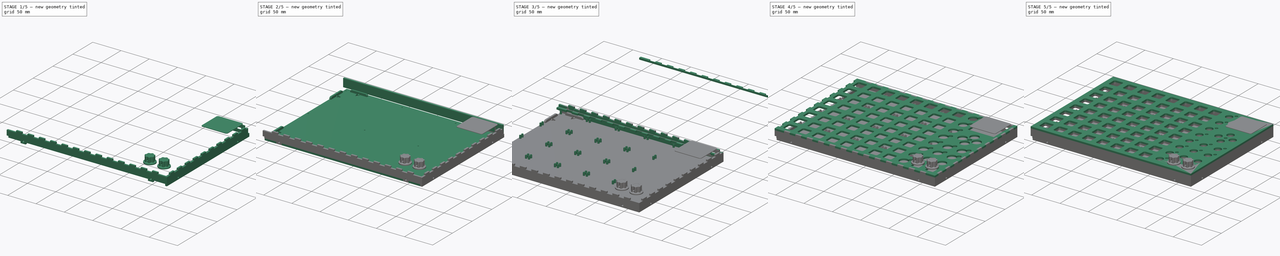
[diagram: build sequence overview — one tinted view per stage of 5, left to right]
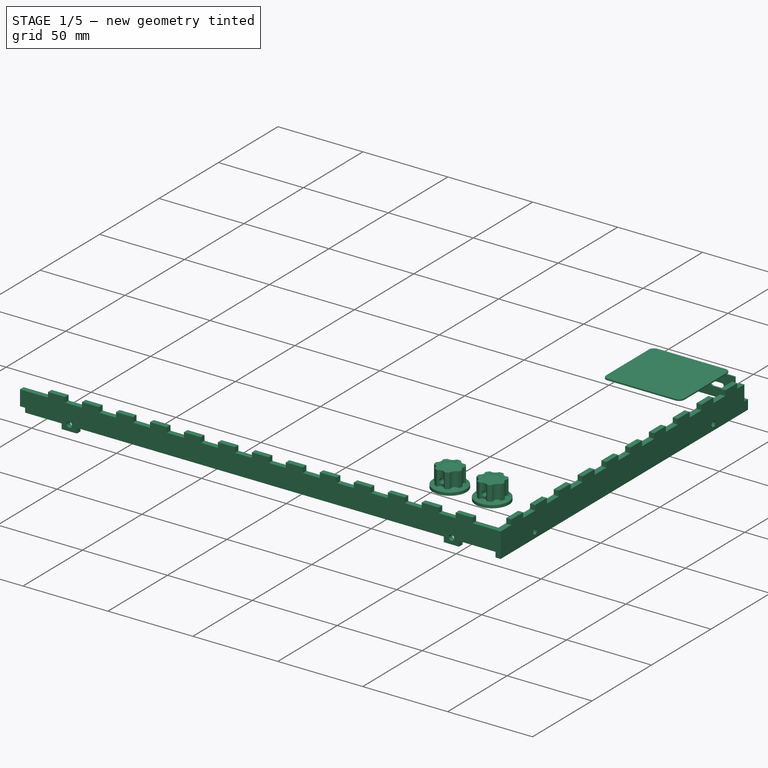
[diagram: stage 1 of 5 — iso view after this stage's code; geometry added in this stage tinted green]
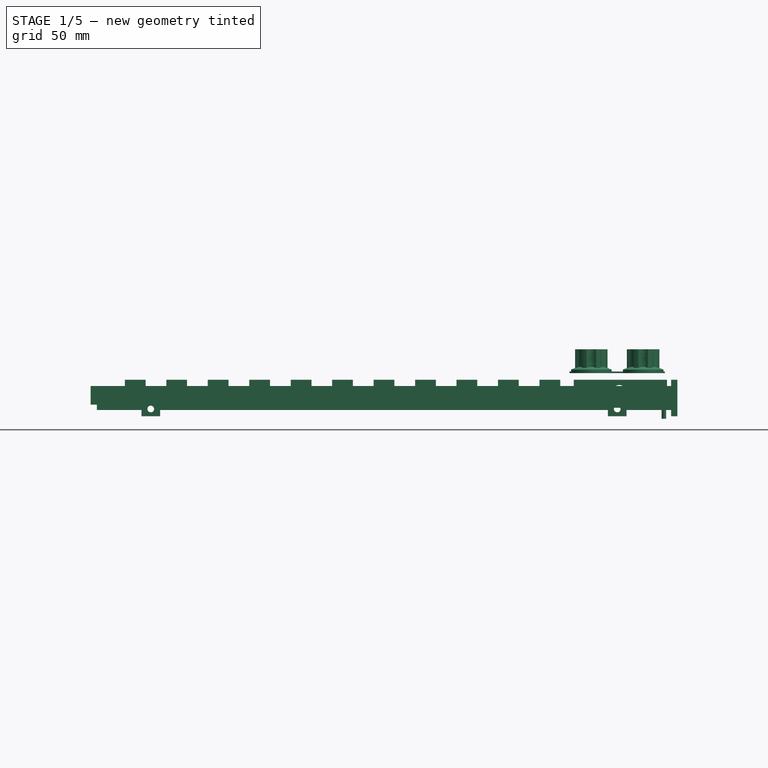
[diagram: stage 1 of 5 — front view after this stage's code; geometry added in this stage tinted green]
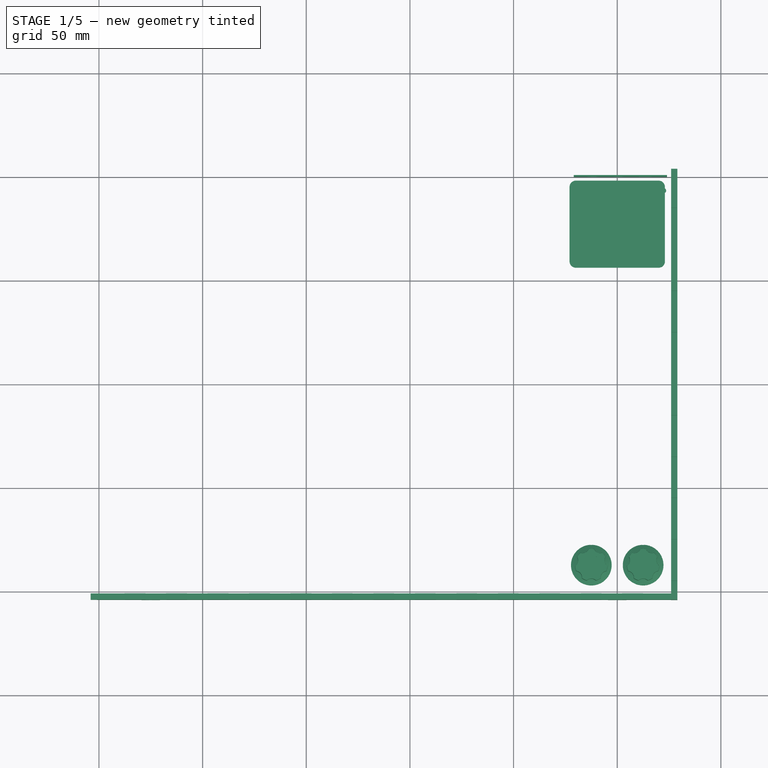
[diagram: stage 1 of 5 — top view after this stage's code; geometry added in this stage tinted green]
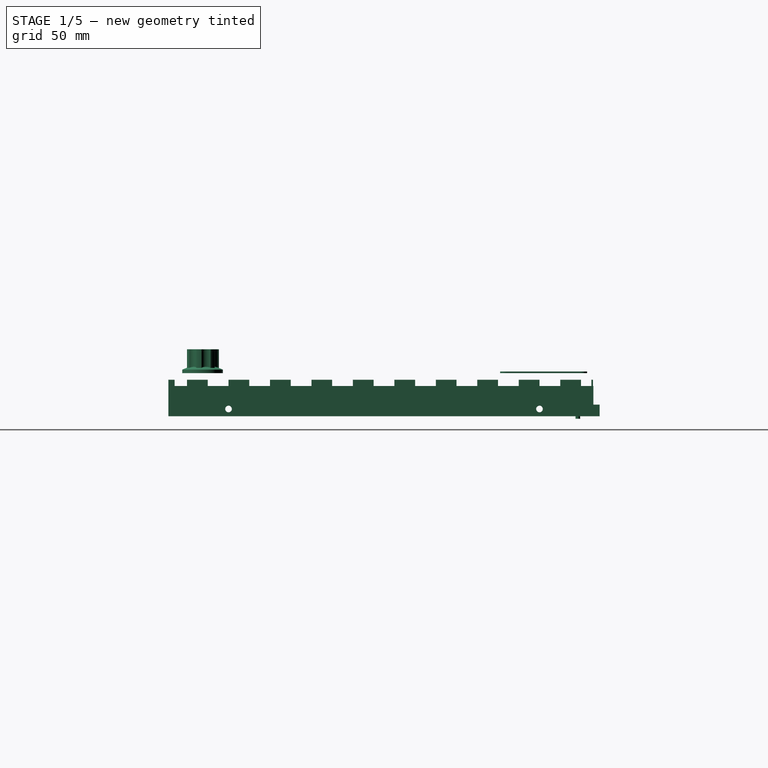
[diagram: stage 1 of 5 — right view after this stage's code; geometry added in this stage tinted green]
FCSTD DOCUMENT  (FreeCAD 0.16R6712 (Git))
Label: midi-grid
License: All rights reserved
LicenseURL: http://en.wikipedia.org/wiki/All_rights_reserved
objects: Part::FeaturePython×60, Part::Box×52, Part::Cut×51, App::VRMLObject×36, Part::Cylinder×25, Part::MultiFuse×20, Part::Feature×6, Sketcher::SketchObject×3, PartDesign::Pad×3, Part::Fillet×3, App::DocumentObjectGroup×1, Part::Mirroring×1
note: 227 computed .brp shape members not serialized (recipe doc carries the construction recipe); baked Part::Feature solids carry a one-line shape summary decoded from their .brp

FEATURE [Part::Box] Box025  label="Cube025"
  Height = 14.6
  Length = 283
  Placement = pos=(-4,0,-2.6) rot=(0,0,1;0rad)
  Width = 3
FEATURE [Part::Box] Box026  label="Cube026"
  Height = 3
  Length = 16.5
  Placement = pos=(-4,0,9) rot=(0,0,1;0rad)
  Width = 3
FEATURE [Part::FeaturePython] Clone015  label="Clone of Cube026"  # Draft clone (typed FeaturePython)
  Objects = -> [Box026]
  Placement = pos=(262.5,0,9) rot=(0,0,1;0rad)
  Scale = (1,1,1)
FEATURE [Part::Box] Box027  label="Cube027"
  Height = 3
  Length = 10
  Placement = pos=(22.5,0,9) rot=(0,0,1;0rad)
  Width = 3
FEATURE [Part::FeaturePython] Array018  # Draft array (typed FeaturePython)
  Angle = 360
  ArrayType = 0
  Axis = (0,0,1)
  Base = -> Box027
  Center = (0,0,0)
  Fuse = false
  IntervalAxis = (0,0,0)
  IntervalX = (20,0,0)
  IntervalY = (0,1,0)
  IntervalZ = (0,0,0)
  NumberPolar = 1
  NumberX = 12
  NumberY = 0
  NumberZ = 1
FEATURE [Part::Box] Box028  label="Cube028"
  Height = 3
  Length = 3
  Placement = pos=(-4,0,-3) rot=(0,0,1;0rad)
  Width = 3
FEATURE [Part::FeaturePython] Clone016  label="Clone of Cube028"  # Draft clone (typed FeaturePython)
  Objects = -> [Box028]
  Placement = pos=(276,0,-3) rot=(0,0,1;0rad)
  Scale = (1,1,1)
FEATURE [Part::Cut] Cut018
  Base = -> Box025
  Tool = -> Clone016
FEATURE [Part::Cut] Cut019
  Base = -> Cut018
  Tool = -> Box028
FEATURE [Part::Cut] Cut020
  Base = -> Cut019
  Tool = -> Box026
FEATURE [Part::Cut] Cut021
  Base = -> Cut020
  Tool = -> Clone015
FEATURE [Part::Cut] Cut022  label="frntpnl"
  Base = -> Cut021
  Placement = pos=(0,-204,-3.2) rot=(0,0,1;0rad)
  Tool = -> Array018
FEATURE [Part::Box] Box037  label="Cube037"
  Height = 17.6
  Length = 3
  Placement = pos=(0,0,-7.6) rot=(0,0,1;0rad)
  Width = 208
FEATURE [Part::Box] Box038  label="Cube038"
  Height = 3
  Length = 5
  Placement = pos=(-1,-1,7) rot=(0,0,1;0rad)
  Width = 10
FEATURE [Part::FeaturePython] Array022  # Draft array (typed FeaturePython)
  Angle = 360
  ArrayType = 0
  Axis = (0,0,1)
  Base = -> Box038
  Center = (0,0,0)
  Fuse = false
  IntervalAxis = (0,0,0)
  IntervalX = (1,0,0)
  IntervalY = (0,20,0)
  IntervalZ = (0,0,0)
  NumberPolar = 1
  NumberX = 1
  NumberY = 11
  NumberZ = 1
FEATURE [Part::Cut] Cut035
  Base = -> Box037
  Placement = pos=(-4,-204,-1.2) rot=(0,0,1;0rad)
  Tool = -> Array022
FEATURE [Part::Box] Box039  label="Cube039"
  Height = 10
  Length = 3
  Placement = pos=(-4,1,-3.2) rot=(0,0,1;0rad)
  Width = 3
FEATURE [Part::Box] Box040  label="Cube040"
  Height = 10
  Length = 3
  Placement = pos=(-4,-204,-3.2) rot=(0,0,1;0rad)
  Width = 3
FEATURE [Part::Cut] Cut036
  Base = -> Cut035
  Tool = -> Box039
FEATURE [Part::Cut] Cut037  label="SidePanel1"
  Base = -> Cut036
  Tool = -> Box040
FEATURE [Part::Cylinder] Cylinder020
  Angle = 360
  Height = 10
  Placement = pos=(2.5,-97.5,-10) rot=(0,0,1;0rad)
  Radius = 1.1
FEATURE [Part::FeaturePython] Clone031  label="Clone of Cylinder020"  # Draft clone (typed FeaturePython)
  Objects = -> [Cylinder020]
  Placement = pos=(272.5,-97.5,-10) rot=(0,0,1;0rad)
  Scale = (1,1,1)
FEATURE [Part::FeaturePython] Clone033  label="Clone of Clone of Cylinder021"  # Draft clone (typed FeaturePython)
  Objects = -> [Clone031]
  Placement = pos=(272.5,-6.5,-10) rot=(0,0,1;0rad)
  Scale = (1,1,1)
FEATURE [Part::Cylinder] Cylinder022
  Angle = 360
  Height = 10
  Placement = pos=(25,-198,-5.3) rot=(1,0,0;1.5708rad)
  Radius = 1.6
FEATURE [Part::Box] Box051  label="Cube051"
  Height = 3
  Length = 9
  Placement = pos=(20.5,-204,-8.8) rot=(0,0,1;0rad)
  Width = 3
FEATURE [Part::Box] Box052  label="Cube052"
  Height = 3
  Length = 9
  Placement = pos=(245.5,-204,-8.8) rot=(0,0,1;0rad)
  Width = 3
FEATURE [Part::Cylinder] Cylinder023
  Angle = 360
  Height = 10
  Placement = pos=(250,-198,-5.3) rot=(1,0,0;1.5708rad)
  Radius = 1.6
FEATURE [Part::MultiFuse] Fusion024
  Shapes = -> [Cut022,Box051,Box052]
FEATURE [Part::Cut] Cut048
  Base = -> Fusion024
  Tool = -> Cylinder023
FEATURE [Part::Cut] Cut049
  Base = -> Cut048
  Tool = -> Cylinder022
FEATURE [Part::FeaturePython] refine003  label="FrontPanel"  # WARN: FeaturePython — macro-defined, semantics opaque (R4)
  Base = -> Cut049
FEATURE [Part::Cylinder] Cylinder024
  Angle = 360
  Height = 10
  Placement = pos=(-5,-175,-5.3) rot=(0,1,0;1.5708rad)
  Radius = 1.6
FEATURE [Part::Cylinder] Cylinder025
  Angle = 360
  Height = 10
  Placement = pos=(-5,-25,-5.3) rot=(0,1,0;1.5708rad)
  Radius = 1.6
FEATURE [Part::Cut] Cut050
  Base = -> Cut037
  Tool = -> Cylinder024
FEATURE [Part::Cut] Cut051  label="SidePanel01"
  Base = -> Cut050
  Tool = -> Cylinder025
FEATURE [Part::FeaturePython] Clone034  label="SidePanel02"  # Draft clone (typed FeaturePython)
  Objects = -> [Cut051]
  Placement = pos=(280,0,0) rot=(0,0,1;0rad)
  Scale = (1,1,1)
FEATURE [Part::Feature] Part__Feature005  label="User Library-Eagle Plastic Devices 45KN018-GRX"
  Placement = pos=(237.5,-187.5,12) rot=(1,0,0;1.5708rad)
  shape: bbox 19.61 x 19.61 x 11.51 mm, 132 faces (baked)
FEATURE [Part::FeaturePython] Clone035  label="Clone of User Library-Eagle Plastic Devices 45KN018-GRX"  # Draft clone (typed FeaturePython)
  Objects = -> [Part__Feature005]
  Placement = pos=(262.5,-187.5,12) rot=(1,0,0;1.5708rad)
  Scale = (1,1,1)
FEATURE [Part::MultiFuse] Fusion025  label="Knobs"
  Shapes = -> [Part__Feature005,Clone035]
FEATURE [Sketcher::SketchObject] Sketch
  sketch-geometry (15):
    g0: LineSegment StartX=0 StartY=0 StartZ=0 EndX=45 EndY=0 EndZ=0
    g1: LineSegment StartX=45 StartY=0 StartZ=0 EndX=45 EndY=13.5 EndZ=0
    g2: LineSegment StartX=45 StartY=13.5 StartZ=0 EndX=0 EndY=13.5 EndZ=0
    g3: LineSegment StartX=0 StartY=13.5 StartZ=0 EndX=0 EndY=0 EndZ=0
    g4: Circle CenterX=23 CenterY=8 CenterZ=0 NormalX=0 NormalY=0 NormalZ=1 Radius=3
    g5: Circle CenterX=35.5 CenterY=8 CenterZ=0 NormalX=0 NormalY=0 NormalZ=1 Radius=3
    g6: LineSegment StartX=10.5 StartY=5.2 StartZ=0 EndX=13 EndY=5.2 EndZ=0
    g7: ArcOfCircle CenterX=12.3871 CenterY=7.3129 CenterZ=0 NormalX=0 NormalY=0 NormalZ=1 Radius=2.2 StartAngle=4.99472 EndAngle=6.00086
    g8: LineSegment StartX=14.5 StartY=6.7 StartZ=0 EndX=14.5 EndY=7.2 EndZ=0
    g9: ArcOfCircle CenterX=13.5 CenterY=7.2 CenterZ=0 NormalX=0 NormalY=0 NormalZ=1 Radius=1 StartAngle=0 EndAngle=1.5708
    g10: LineSegment StartX=13.5 StartY=8.2 StartZ=0 EndX=7.5 EndY=8.2 EndZ=0
    g11: ArcOfCircle CenterX=7.5 CenterY=7.2 CenterZ=0 NormalX=0 NormalY=0 NormalZ=1 Radius=1 StartAngle=1.5708 EndAngle=3.14159
    g12: LineSegment StartX=6.5 StartY=7.2 StartZ=0 EndX=6.5 EndY=6.7 EndZ=0
    g13: LineSegment StartX=10.5 StartY=5.2 StartZ=0 EndX=8 EndY=5.2 EndZ=0
    g14: ArcOfCircle CenterX=8.6129 CenterY=7.3129 CenterZ=0 NormalX=0 NormalY=0 NormalZ=1 Radius=2.2 StartAngle=3.42392 EndAngle=4.43006
  constraints (48):
    c: Coincident(g0,g1)
    c: Coincident(g1,g2)
    c: Coincident(g2,g3)
    c: Coincident(g3,g0)
    c: Horizontal(g0)
    c: Horizontal(g2)
    c: Vertical(g1)
    c: Vertical(g3)
    c: Coincident(g0,g-1)
    c: DistanceY(g3,g3) = 13.5
    c: DistanceX(g0,g0) = 45
    c: Radius(g4) = 3
    c: DistanceX(g-1,g4) = 23
    c: DistanceY(g0,g4) = 8
    c: Equal(g5,g4)
    c: DistanceX(g4,g5) = 12.5
    c: DistanceY(g5,g4) = 0
    c: Horizontal(g6)
    c: DistanceY(g-1,g6) = 5.2
    c: DistanceX(g6,g4) = 12.5
    c: DistanceX(g6,g6) = 2.5
    c: Coincident(g7,g6)
    c: DistanceX(g6,g7) = 1.5
    c: DistanceY(g6,g7) = 1.5
    c: Coincident(g8,g7)
    c: Vertical(g8)
    c: DistanceY(g8,g8) = 0.5
    c: Coincident(g9,g8)
    c: Radius(g9) = 1
    c: Angle(g9) = 1.5708
    c: DistanceY(g9,g8) = 0
    c: Radius(g7) = 2.2
    c: Coincident(g10,g9)
    c: Horizontal(g10)
    c: DistanceX(g10,g10) = 6
    c: Radius(g11) = 1
    c: Angle(g11) = 1.5708
    c: Coincident(g10,g11)
    c: Coincident(g12,g11)
    c: Vertical(g12)
    c: DistanceY(g12,g12) = 0.5
    c: Coincident(g13,g6)
    c: Horizontal(g13)
    c: Equal(g13,g6)
    c: Coincident(g14,g13)
    c: Coincident(g12,g14)
    c: Radius(g14) = 2.2
    c: DistanceX(g12,g13) = 1.5
FEATURE [PartDesign::Pad] Pad002
  Length = 0.8
  Length2 = 100
  Sketch = -> Sketch
  Type = 0
FEATURE [Part::FeaturePython] Clone036  label="Clone of Pad002"  # Draft clone (typed FeaturePython)
  Objects = -> [Pad002]
  Scale = (1,1,1)
FEATURE [Part::MultiFuse] Fusion026
  Placement = pos=(274,0,-4.7) rot=(0,0.707107,0.707107;3.14159rad)
  Shapes = -> [Pad002,Clone036]
FEATURE [Part::Box] Box053  label="Cube053"
  Height = 0.8
  Length = 46
  Placement = pos=(227,-44,12) rot=(0,0,1;0rad)
  Width = 42
FEATURE [Part::Fillet] Fillet002  label="LcdCover"
  Base = -> Box053
  Edges = 4 edges r=3: [Edge1,Edge3,Edge5,Edge7]
FEATURE [Part::Feature] Part__Feature006  label="NutDIN-934"
  Placement = pos=(3,-25,-5.3) rot=(1,0,0;0.523599rad)
  shape: bbox 2.401 x 6.352 x 6.352 mm, 26 faces (baked)
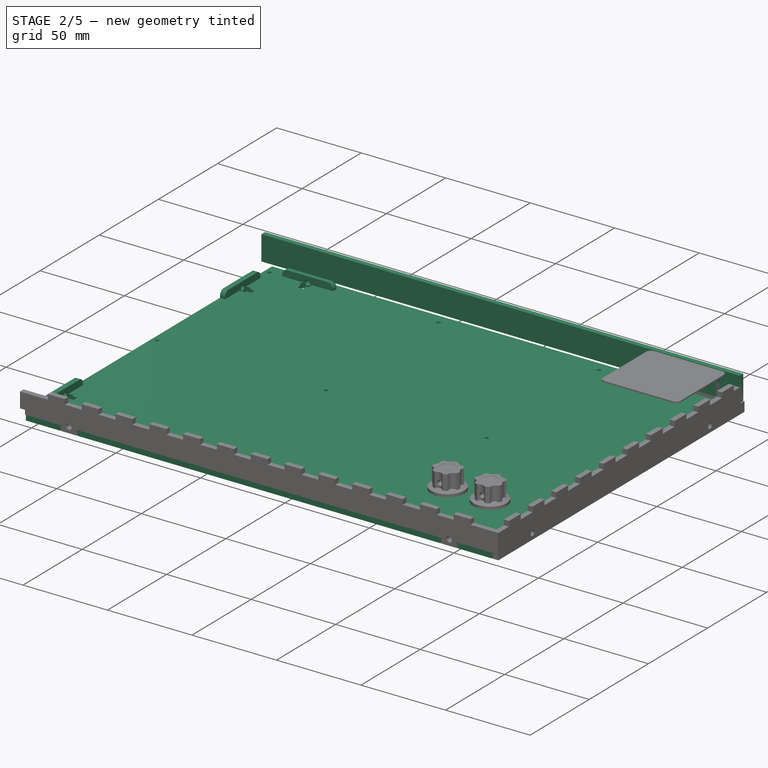
[diagram: stage 2 of 5 — iso view after this stage's code; geometry added in this stage tinted green]
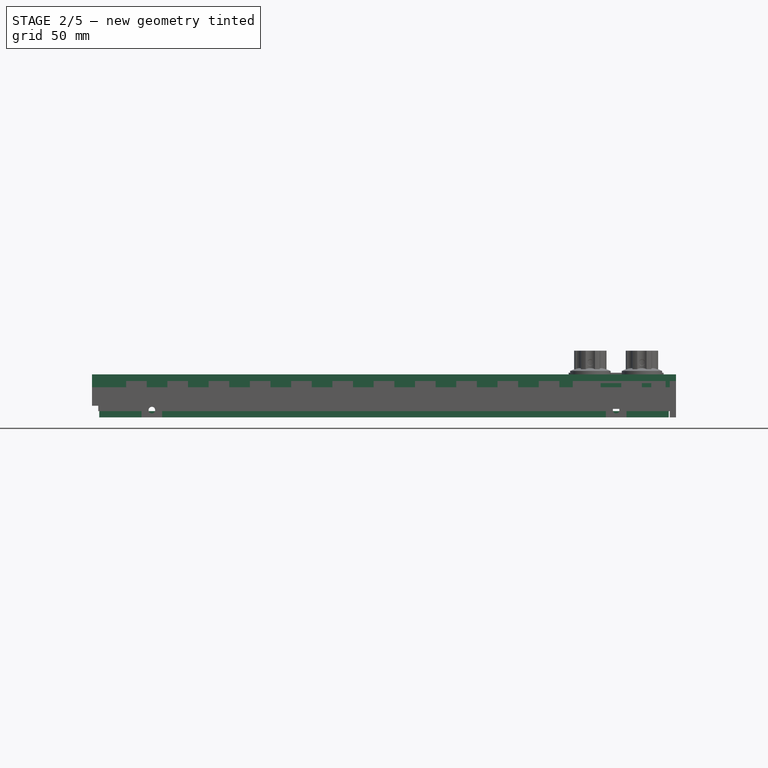
[diagram: stage 2 of 5 — front view after this stage's code; geometry added in this stage tinted green]
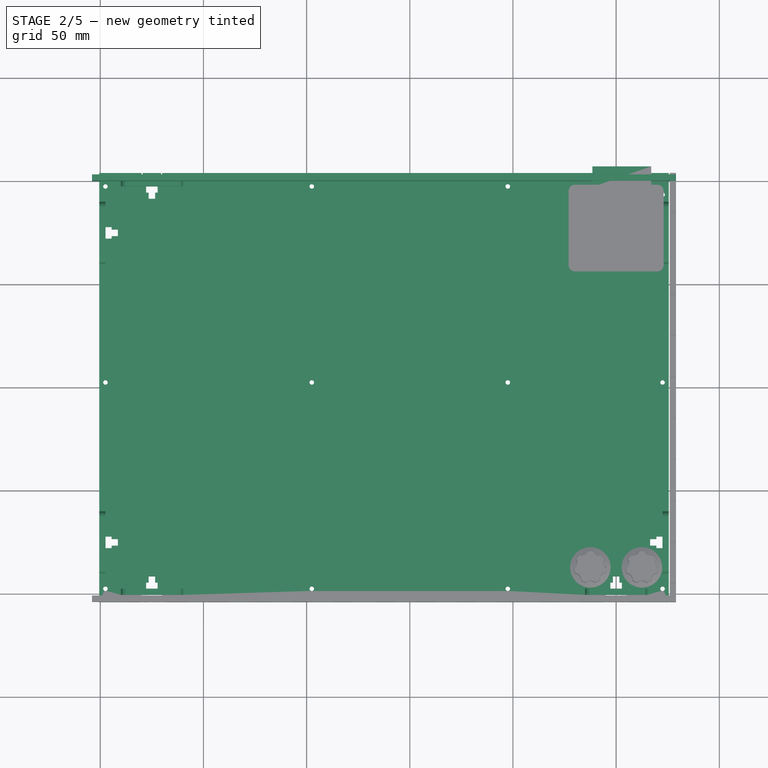
[diagram: stage 2 of 5 — top view after this stage's code; geometry added in this stage tinted green]
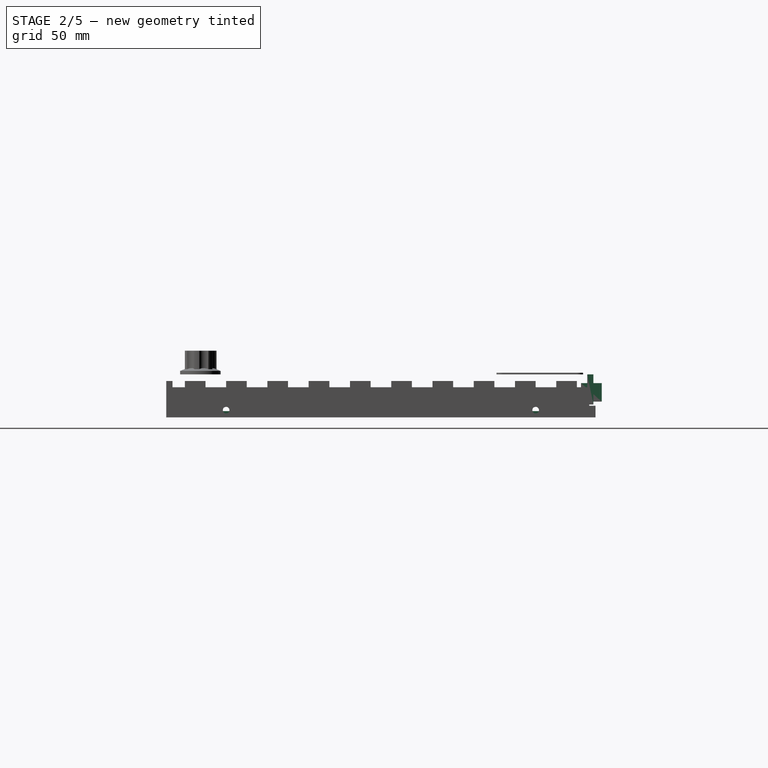
[diagram: stage 2 of 5 — right view after this stage's code; geometry added in this stage tinted green]
FEATURE [Part::Box] Box029  label="Cube029"
  Height = 14.6
  Length = 283
  Placement = pos=(-4,0,-2.6) rot=(0,0,1;0rad)
  Width = 3
FEATURE [Part::Box] Box030  label="Cube030"
  Height = 3
  Length = 16.5
  Placement = pos=(-4,0,9) rot=(0,0,1;0rad)
  Width = 3
FEATURE [Part::Box] Box035  label="Cube035"
  Height = 9
  Length = 28.5
  Placement = pos=(238.5,-3,-1.2) rot=(0,0,1;0rad)
  Width = 10
FEATURE [Part::Box] Box041  label="Cube041"
  Height = 3
  Length = 276
  Placement = pos=(-0.5,-204,-8.8) rot=(0,0,1;0rad)
  Width = 208
FEATURE [Part::Box] Box042  label="Cube042"
  Height = 7
  Length = 30
  Width = 3
FEATURE [Part::Box] Box043  label="Cube043"
  Height = 3
  Length = 5
  Placement = pos=(5,-1,0) rot=(0,0,1;0rad)
  Width = 10
FEATURE [Part::Box] Box045  label="Cube045"
  Height = 3
  Length = 5
  Placement = pos=(20,-1,0) rot=(0,0,1;0rad)
  Width = 10
FEATURE [Part::Fillet] Fillet
  Base = -> Box042
  Edges = 2 edges r=3: [Edge2,Edge6]
FEATURE [Part::Cut] Cut038
  Base = -> Fillet
  Tool = -> Box043
FEATURE [Part::Cut] Cut039
  Base = -> Cut038
  Tool = -> Box045
FEATURE [Part::Cylinder] Cylinder017
  Angle = 360
  Height = 10
  Placement = pos=(15,5,3.5) rot=(1,0,0;1.5708rad)
  Radius = 1.6
FEATURE [Part::Cut] Cut040  label="BaseHolder"
  Base = -> Cut039
  Placement = pos=(10,-200.5,-8.8) rot=(0,0,1;0rad)
  Tool = -> Cylinder017
FEATURE [Part::Box] Box046  label="Cube046"
  Height = 3
  Length = 10
  Placement = pos=(10,0,0) rot=(0,0,1;0rad)
  Width = 10
FEATURE [Part::Box] Box047  label="Cube047"
  Height = 3
  Length = 5
  Width = 3
FEATURE [Part::FeaturePython] Clone019  label="Clone of Cube047"  # Draft clone (typed FeaturePython)
  Objects = -> [Box047]
  Placement = pos=(25,0,0) rot=(0,0,1;0rad)
  Scale = (1,1,1)
FEATURE [Part::Box] Box048  label="Cube048"
  Height = 3
  Length = 5.6
  Placement = pos=(12.2,-3,0) rot=(0,0,1;0rad)
  Width = 3
FEATURE [Part::Box] Box049  label="Cube049"
  Height = 3
  Length = 3.2
  Placement = pos=(13.4,-6,0) rot=(0,0,1;0rad)
  Width = 3
FEATURE [Part::MultiFuse] Fusion017
  Placement = pos=(2.5,-40,-8.8) rot=(0,0,1;1.5708rad)
  Shapes = -> [Box046,Clone019,Box047,Box049,Box048]
FEATURE [Part::FeaturePython] Clone023  label="Clone of Fusion017"  # Draft clone (typed FeaturePython)
  Objects = -> [Fusion017]
  Placement = pos=(2.5,-190,-8.8) rot=(0,0,1;1.5708rad)
  Scale = (1,1,1)
FEATURE [Part::MultiFuse] Fusion019
  Shapes = -> [Clone023,Fusion017]
FEATURE [Part::FeaturePython] Clone024  label="Clone of Fusion019"  # Draft clone (typed FeaturePython)
  Objects = -> [Fusion019]
  Placement = pos=(275,-200,0) rot=(0,0,1;3.14159rad)
  Scale = (1,1,1)
FEATURE [Part::Cut] Cut041
  Base = -> Box041
  Tool = -> Fusion019
FEATURE [Part::Cut] Cut042
  Base = -> Cut041
  Tool = -> Clone024
FEATURE [Part::FeaturePython] Clone025  label="Clone of Fusion020"  # Draft clone (typed FeaturePython)
  Objects = -> [Fusion017]
  Placement = pos=(10,-2.5,-8.8) rot=(0,0,1;0rad)
  Scale = (1,1,1)
FEATURE [Part::FeaturePython] Clone026  label="Clone of Clone of Fusion020"  # Draft clone (typed FeaturePython)
  Objects = -> [Clone025]
  Placement = pos=(40,-197.5,-8.8) rot=(0,0,1;3.14159rad)
  Scale = (1,1,1)
FEATURE [Part::FeaturePython] Clone027  label="Clone of Clone of Clone of Fusion020"  # Draft clone (typed FeaturePython)
  Objects = -> [Clone026]
  Placement = pos=(265,-197.5,-8.8) rot=(0,0,1;3.14159rad)
  Scale = (1,1,1)
FEATURE [Part::Cut] Cut043
  Base = -> Cut042
  Tool = -> Clone025
FEATURE [Part::Cut] Cut044
  Base = -> Cut043
  Tool = -> Clone026
FEATURE [Part::Cut] Cut045
  Base = -> Cut044
  Tool = -> Clone027
FEATURE [Part::FeaturePython] Array023  # Draft array (typed FeaturePython)
  Angle = 360
  ArrayType = 0
  Axis = (0,0,1)
  Base = -> Cut040
  Center = (0,0,0)
  Fuse = false
  IntervalAxis = (0,0,0)
  IntervalX = (1,0,0)
  IntervalY = (0,198,0)
  IntervalZ = (0,0,0)
  NumberPolar = 1
  NumberX = 1
  NumberY = 2
  NumberZ = 1
FEATURE [Part::FeaturePython] Array024  # Draft array (typed FeaturePython)
  Angle = 360
  ArrayType = 0
  Axis = (0,0,1)
  Base = -> Cut040
  Center = (0,0,0)
  Fuse = false
  IntervalAxis = (0,0,0)
  IntervalX = (225,0,0)
  IntervalY = (0,1,0)
  IntervalZ = (0,0,0)
  NumberPolar = 1
  NumberX = 2
  NumberY = 1
  NumberZ = 1
FEATURE [Part::FeaturePython] Clone028  label="Clone of BaseHolder"  # Draft clone (typed FeaturePython)
  Objects = -> [Cut040]
  Placement = pos=(2.5,-190,-8.8) rot=(0,0,1;1.5708rad)
  Scale = (1,1,1)
FEATURE [Part::FeaturePython] Array025  # Draft array (typed FeaturePython)
  Angle = 360
  ArrayType = 0
  Axis = (0,0,1)
  Base = -> Clone028
  Center = (0,0,0)
  Fuse = false
  IntervalAxis = (0,0,0)
  IntervalX = (273,0,0)
  IntervalY = (0,150,0)
  IntervalZ = (0,0,0)
  NumberPolar = 1
  NumberX = 2
  NumberY = 2
  NumberZ = 1
FEATURE [Part::Cylinder] Cylinder018
  Angle = 360
  Height = 10
  Placement = pos=(2.5,-2.5,-10) rot=(0,0,1;0rad)
  Radius = 1.1
FEATURE [Part::Cylinder] Cylinder019
  Angle = 360
  Height = 10
  Placement = pos=(2.5,-197.5,-10) rot=(0,0,1;0rad)
  Radius = 1.1
FEATURE [Part::MultiFuse] Fusion020
  Shapes = -> [Cylinder018,Cylinder019,Cylinder020]
FEATURE [Part::FeaturePython] Clone029  label="Clone of Fusion021"  # Draft clone (typed FeaturePython)
  Objects = -> [Fusion020]
  Placement = pos=(100,0,0) rot=(0,0,1;0rad)
  Scale = (1,1,1)
FEATURE [Part::FeaturePython] Clone030  label="Clone of Clone of Fusion021"  # Draft clone (typed FeaturePython)
  Objects = -> [Clone029]
  Placement = pos=(195,0,0) rot=(0,0,1;0rad)
  Scale = (1,1,1)
FEATURE [Part::FeaturePython] Clone032  label="Clone of Clone of Cylinder020"  # Draft clone (typed FeaturePython)
  Objects = -> [Clone031]
  Placement = pos=(272.5,-197.5,-10) rot=(0,0,1;0rad)
  Scale = (1,1,1)
FEATURE [Part::MultiFuse] Fusion021
  Shapes = -> [Fusion020,Clone032,Clone033,Clone029,Clone030,Clone031]
FEATURE [Part::Cut] Cut046  label="BasePlate"
  Base = -> Cut045
  Tool = -> Fusion021
FEATURE [Part::Box] Box050  label="Cube050"
  Height = 3
  Length = 9
  Placement = pos=(20.5,1,-8.8) rot=(0,0,1;0rad)
  Width = 3
FEATURE [Part::MultiFuse] Fusion023  label="Base"
  Shapes = -> [Cut046,Array024,Array025,Array023]
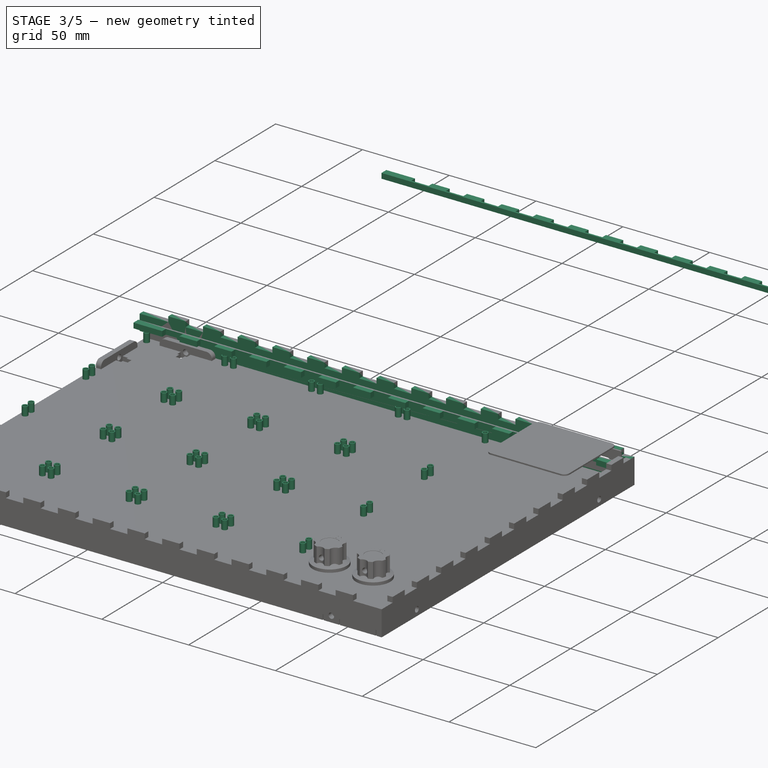
[diagram: stage 3 of 5 — iso view after this stage's code; geometry added in this stage tinted green]
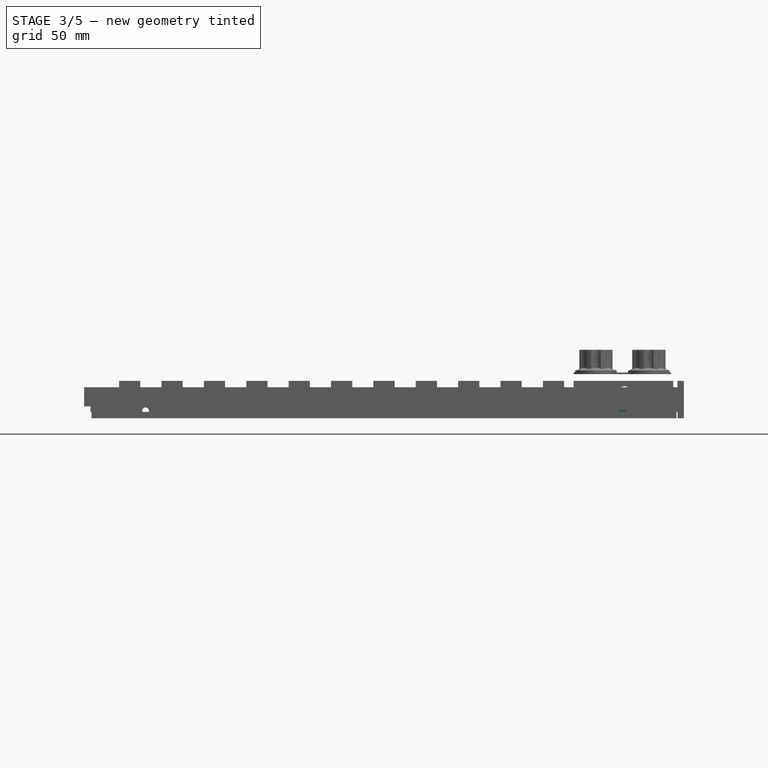
[diagram: stage 3 of 5 — front view after this stage's code; geometry added in this stage tinted green]
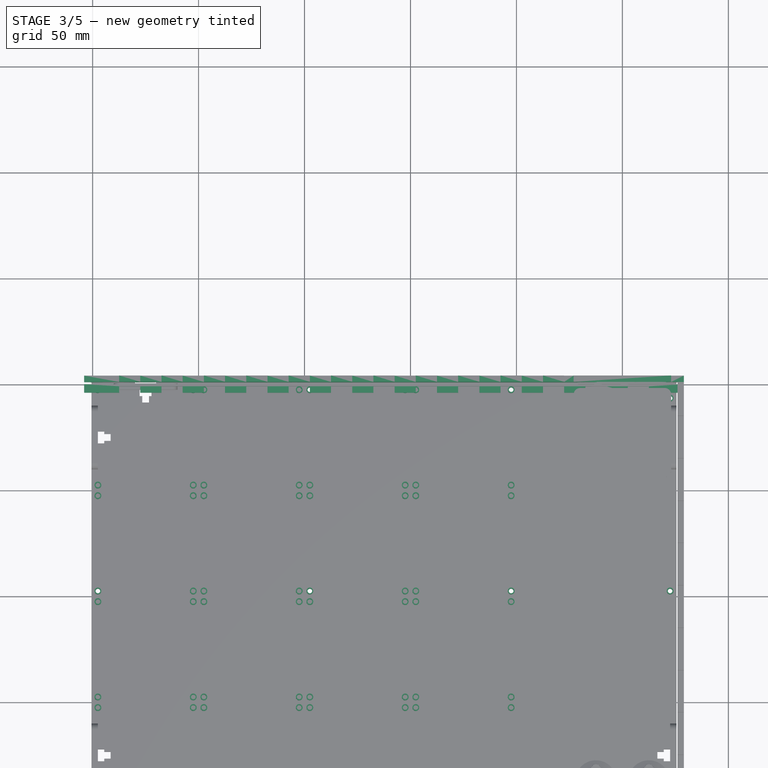
[diagram: stage 3 of 5 — top view after this stage's code; geometry added in this stage tinted green]
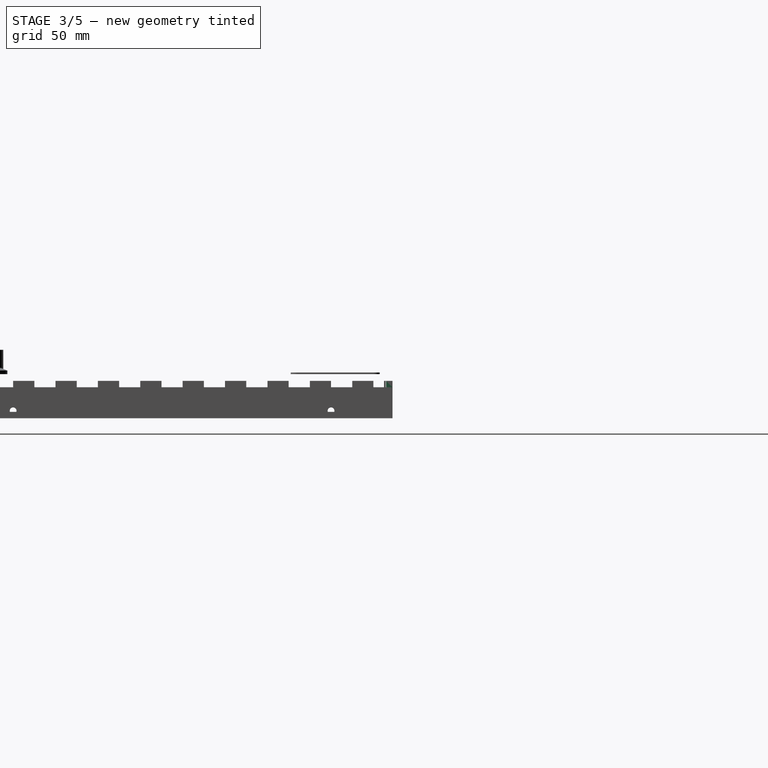
[diagram: stage 3 of 5 — right view after this stage's code; geometry added in this stage tinted green]
FEATURE [Part::Box] Box017  label="Cube017"
  Height = 3
  Length = 283
  Placement = pos=(-4,-4,0) rot=(0,0,1;0rad)
  Width = 4
FEATURE [Part::Box] Box018  label="Cube018"
  Height = 3
  Length = 231
  Placement = pos=(-4,200,0) rot=(0,0,1;0rad)
  Width = 4
FEATURE [Part::Box] Box022  label="Cube022"
  Height = 10
  Length = 10
  Placement = pos=(12.5,-4,0) rot=(0,0,1;0rad)
  Width = 3
FEATURE [Part::FeaturePython] Array016  # Draft array (typed FeaturePython)
  Angle = 360
  ArrayType = 0
  Axis = (0,0,1)
  Base = -> Box022
  Center = (0,0,0)
  Fuse = false
  IntervalAxis = (0,0,0)
  IntervalX = (20,0,0)
  IntervalY = (0,1,0)
  IntervalZ = (0,0,0)
  NumberPolar = 1
  NumberX = 13
  NumberY = 1
  NumberZ = 1
FEATURE [Part::Cut] Cut016
  Base = -> Box017
  Tool = -> Array016
FEATURE [Part::Box] Box023  label="Cube023"
  Height = 3
  Length = 6
  Placement = pos=(273,200,0) rot=(0,0,1;0rad)
  Width = 4
FEATURE [Part::Box] Box024  label="Cube024"
  Height = 3
  Length = 10
  Placement = pos=(12.5,201,0) rot=(0,0,1;0rad)
  Width = 3
FEATURE [Part::FeaturePython] Array017  # Draft array (typed FeaturePython)
  Angle = 360
  ArrayType = 0
  Axis = (0,0,1)
  Base = -> Box024
  Center = (0,0,0)
  Fuse = false
  IntervalAxis = (0,0,0)
  IntervalX = (20,0,0)
  IntervalY = (0,1,0)
  IntervalZ = (0,0,0)
  NumberPolar = 1
  NumberX = 11
  NumberY = 1
  NumberZ = 1
FEATURE [Part::Cut] Cut017
  Base = -> Box018
  Tool = -> Array017
FEATURE [Part::Box] Box031  label="Cube031"
  Height = 3
  Length = 10
  Placement = pos=(22.5,0,9) rot=(0,0,1;0rad)
  Width = 3
FEATURE [Part::FeaturePython] Array019  # Draft array (typed FeaturePython)
  Angle = 360
  ArrayType = 0
  Axis = (0,0,1)
  Base = -> Box031
  Center = (0,0,0)
  Fuse = false
  IntervalAxis = (0,0,0)
  IntervalX = (20,0,0)
  IntervalY = (0,1,0)
  IntervalZ = (0,0,0)
  NumberPolar = 1
  NumberX = 10
  NumberY = 0
  NumberZ = 1
FEATURE [Part::Box] Box032  label="Cube032"
  Height = 3
  Length = 3
  Placement = pos=(-4,0,-3) rot=(0,0,1;0rad)
  Width = 3
FEATURE [Part::Box] Box033  label="Cube033"
  Height = 3
  Length = 4.5
  Placement = pos=(222.5,0,9) rot=(0,0,1;0rad)
  Width = 3
FEATURE [Part::FeaturePython] Clone017  label="Clone of Cube032"  # Draft clone (typed FeaturePython)
  Objects = -> [Box032]
  Placement = pos=(276,0,-3) rot=(0,0,1;0rad)
  Scale = (1,1,1)
FEATURE [Part::Box] Box034  label="Cube034"
  Height = 3
  Length = 6
  Placement = pos=(273,0,9) rot=(0,0,1;0rad)
  Width = 3
FEATURE [Part::Cut] Cut023
  Base = -> Box029
  Tool = -> Box030
FEATURE [Part::Cut] Cut024
  Base = -> Cut023
  Tool = -> Box034
FEATURE [Part::Cut] Cut025
  Base = -> Cut024
  Tool = -> Box033
FEATURE [Part::Cut] Cut026
  Base = -> Cut025
  Tool = -> Box032
FEATURE [Part::Cut] Cut027
  Base = -> Cut026
  Tool = -> Clone017
FEATURE [Part::Cut] Cut028
  Base = -> Cut027
  Placement = pos=(0,0,-3.2) rot=(0,0,1;0rad)
  Tool = -> Array019
FEATURE [Part::Cylinder] Cylinder012
  Angle = 360
  Height = 10
  Placement = pos=(238.5,4,3.3) rot=(1,0,0;1.5708rad)
  Radius = 4.5
FEATURE [Part::Cylinder] Cylinder013
  Angle = 360
  Height = 10
  Placement = pos=(267,4,2.3) rot=(1,0,0;1.5708rad)
  Radius = 5.5
FEATURE [Part::Cylinder] Cylinder014
  Angle = 360
  Height = 5
  Radius = 1.6
FEATURE [Part::Cylinder] Cylinder015
  Angle = 360
  Height = 5
  Radius = 1.1
FEATURE [Part::Cut] Cut029
  Base = -> Cylinder014
  Placement = pos=(2.5,-2.5,-5.8) rot=(0,0,1;0rad)
  Tool = -> Cylinder015
FEATURE [Part::FeaturePython] Array020  # Draft array (typed FeaturePython)
  Angle = 360
  ArrayType = 0
  Axis = (0,0,1)
  Base = -> Cut029
  Center = (0,0,0)
  Fuse = false
  IntervalAxis = (0,0,0)
  IntervalX = (45,0,0)
  IntervalY = (0,-45,0)
  IntervalZ = (0,0,0)
  NumberPolar = 1
  NumberX = 2
  NumberY = 2
  NumberZ = 1
FEATURE [Part::FeaturePython] Array021  label="StandoffsGrid"  # Draft array (typed FeaturePython)
  Angle = 360
  ArrayType = 0
  Axis = (0,0,1)
  Base = -> Array020
  Center = (0,0,0)
  Fuse = false
  IntervalAxis = (0,0,0)
  IntervalX = (50,0,0)
  IntervalY = (0,-50,0)
  IntervalZ = (0,0,0)
  NumberPolar = 1
  NumberX = 4
  NumberY = 4
  NumberZ = 1
FEATURE [Part::Cylinder] Cylinder016
  Angle = 360
  Height = 10
  Placement = pos=(260,4,2.3) rot=(1,0,0;1.5708rad)
  Radius = 5.5
FEATURE [Part::Box] Box036  label="Cube036"
  Height = 9
  Length = 7
  Placement = pos=(260,-3,-3.2) rot=(0,0,1;0rad)
  Width = 10
FEATURE [Part::Cut] Cut030
  Base = -> Cut028
  Tool = -> Box035
FEATURE [Part::Cut] Cut031
  Base = -> Cut030
  Tool = -> Box036
FEATURE [Part::Cut] Cut032
  Base = -> Cut031
  Tool = -> Cylinder016
FEATURE [Part::Cut] Cut033
  Base = -> Cut032
  Tool = -> Cylinder013
FEATURE [Part::Cut] Cut034  label="bckpnl"
  Base = -> Cut033
  Placement = pos=(0,1,0) rot=(0,0,1;0rad)
  Tool = -> Cylinder012
FEATURE [Part::FeaturePython] Clone020  label="Clone of Cut029"  # Draft clone (typed FeaturePython)
  Objects = -> [Cut029]
  Placement = pos=(272.5,-6.5,-5.8) rot=(0,0,1;0rad)
  Scale = (1,1,1)
FEATURE [Part::FeaturePython] Clone021  label="Clone of Clone of Cut029"  # Draft clone (typed FeaturePython)
  Objects = -> [Clone020]
  Placement = pos=(272.5,-97.5,-5.8) rot=(0,0,1;0rad)
  Scale = (1,1,1)
FEATURE [Part::FeaturePython] Clone022  label="Clone of Clone of Clone of Cut029"  # Draft clone (typed FeaturePython)
  Objects = -> [Clone021]
  Placement = pos=(272.5,-197.5,-5.8) rot=(0,0,1;0rad)
  Scale = (1,1,1)
FEATURE [Part::MultiFuse] Fusion018  label="Standoffs"
  Shapes = -> [Array021,Clone020,Clone021,Clone022]
FEATURE [Part::MultiFuse] Fusion022
  Shapes = -> [Cut034,Box050]
FEATURE [Part::Cylinder] Cylinder021
  Angle = 360
  Height = 10
  Placement = pos=(25,4,-5.3) rot=(1,0,0;1.5708rad)
  Radius = 1.6
FEATURE [Part::FeaturePython] refine002  label="refine_Fusion022"  # WARN: FeaturePython — macro-defined, semantics opaque (R4)
  Base = -> Fusion022
FEATURE [Part::Cut] Cut047  label="BackPanel"
  Base = -> refine002
  Tool = -> Cylinder021
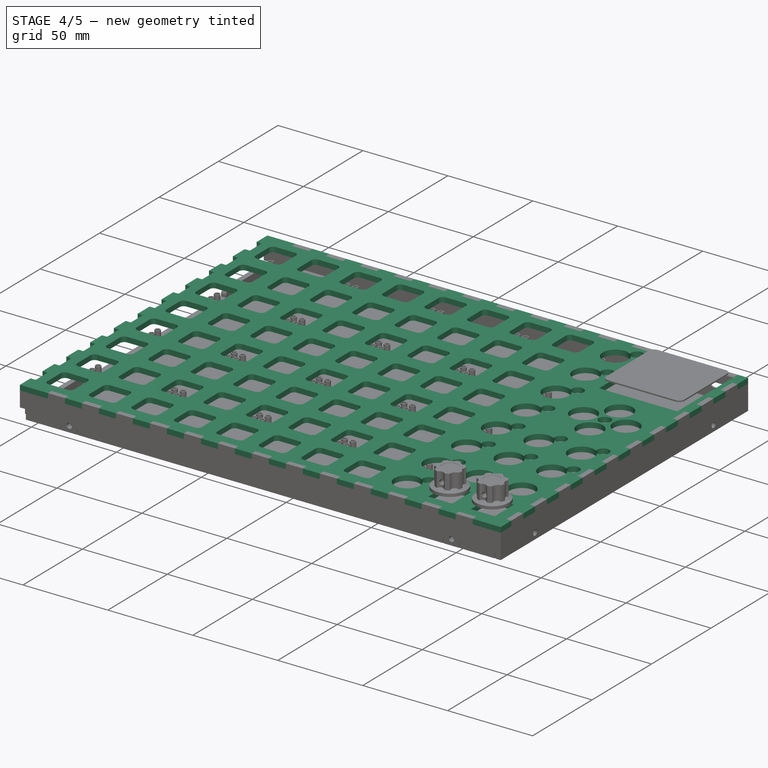
[diagram: stage 4 of 5 — iso view after this stage's code; geometry added in this stage tinted green]
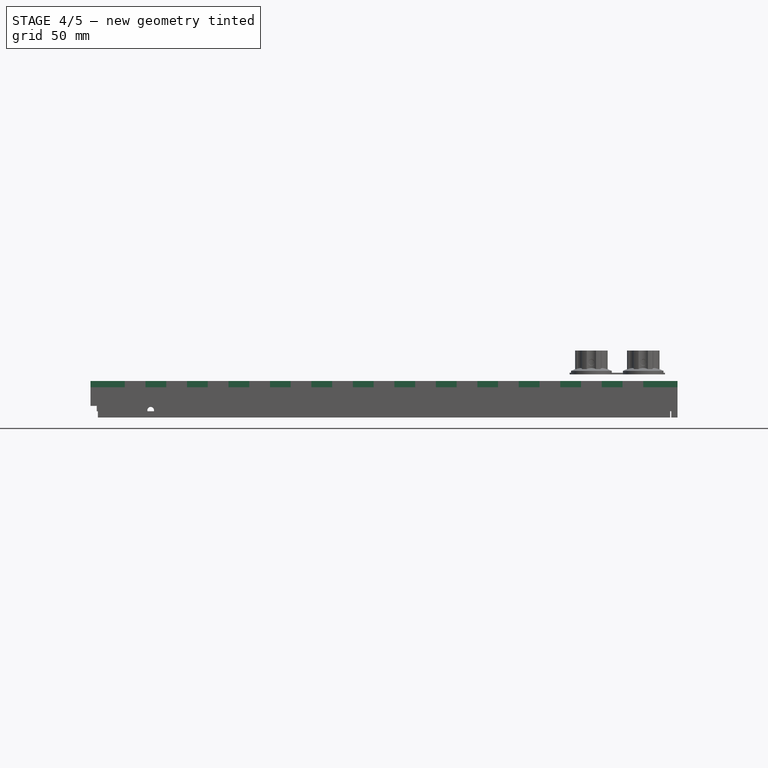
[diagram: stage 4 of 5 — front view after this stage's code; geometry added in this stage tinted green]
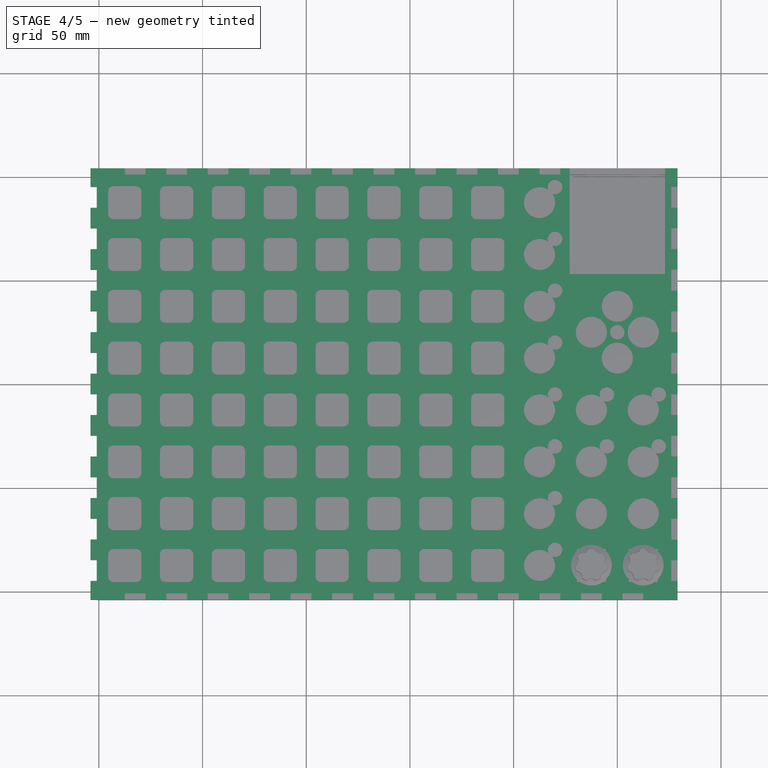
[diagram: stage 4 of 5 — top view after this stage's code; geometry added in this stage tinted green]
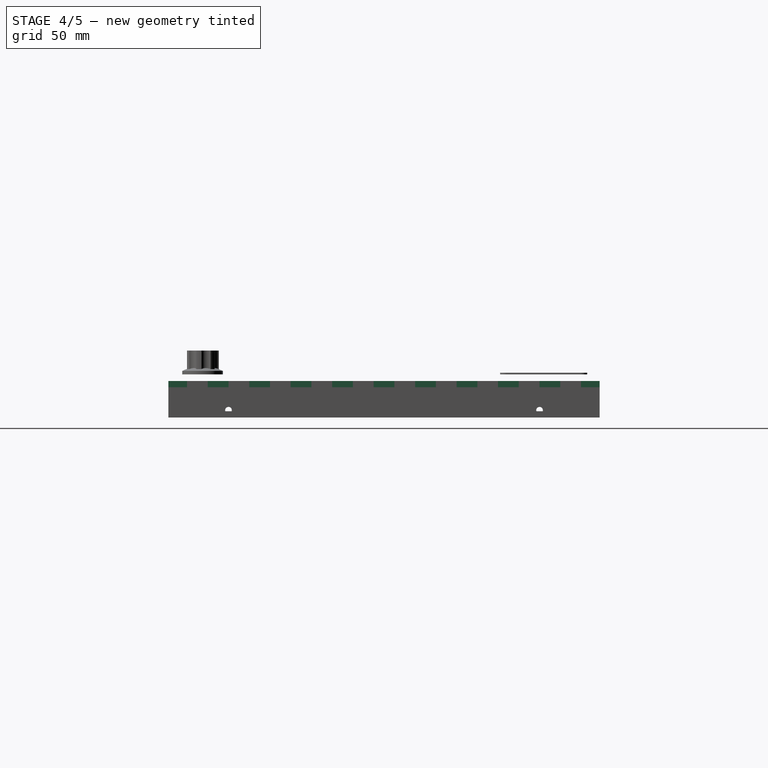
[diagram: stage 4 of 5 — right view after this stage's code; geometry added in this stage tinted green]
FEATURE [Sketcher::SketchObject] Sketch002
  sketch-geometry (12):
    g0: LineSegment StartX=0 StartY=25 StartZ=0 EndX=25 EndY=25 EndZ=0
    g1: LineSegment StartX=25 StartY=25 StartZ=0 EndX=25 EndY=0 EndZ=0
    g2: LineSegment StartX=25 StartY=0 StartZ=0 EndX=0 EndY=0 EndZ=0
    g3: LineSegment StartX=0 StartY=0 StartZ=0 EndX=0 EndY=25 EndZ=0
    g4: LineSegment StartX=4.5 StartY=18 StartZ=0 EndX=4.5 EndY=7 EndZ=0
    g5: LineSegment StartX=20.5 StartY=18 StartZ=0 EndX=20.5 EndY=7 EndZ=0
    g6: ArcOfCircle CenterX=7 CenterY=18 CenterZ=0 NormalX=0 NormalY=0 NormalZ=1 Radius=2.5 StartAngle=1.5708 EndAngle=3.14159
    g7: ArcOfCircle CenterX=18 CenterY=18 CenterZ=0 NormalX=0 NormalY=0 NormalZ=1 Radius=2.5 StartAngle=0 EndAngle=1.5708
    g8: ArcOfCircle CenterX=7 CenterY=7 CenterZ=0 NormalX=0 NormalY=0 NormalZ=1 Radius=2.5 StartAngle=3.14159 EndAngle=4.71239
    g9: ArcOfCircle CenterX=18 CenterY=7 CenterZ=0 NormalX=0 NormalY=0 NormalZ=1 Radius=2.5 StartAngle=4.71239 EndAngle=6.28319
    g10: LineSegment StartX=7 StartY=4.5 StartZ=0 EndX=18 EndY=4.5 EndZ=0
    g11: LineSegment StartX=18 StartY=20.5 StartZ=0 EndX=7 EndY=20.5 EndZ=0
  constraints (40):
    c: Coincident(g0,g1)
    c: Coincident(g1,g2)
    c: Coincident(g2,g3)
    c: Coincident(g3,g0)
    c: Horizontal(g0)
    c: Horizontal(g2)
    c: Vertical(g1)
    c: Vertical(g3)
    c: PointOnObject(g0,g-2)
    c: Vertical(g4)
    c: DistanceY(g4,g4) = 11
    c: Vertical(g5)
    c: Equal(g5,g4)
    c: DistanceX(g0,g4) = 4.5
    c: DistanceX(g4,g5) = 16
    c: Coincident(g7,g5)
    c: Coincident(g8,g4)
    c: Coincident(g9,g5)
    c: Horizontal(g10)
    c: Horizontal(g11)
    c: Coincident(g11,g6)
    c: Coincident(g7,g11)
    c: Angle(g7) = 1.5708
    c: Angle(g6) = 1.5708
    c: Radius(g7) = 2.5
    c: Radius(g6) = 2.5
    c: Coincident(g6,g4)
    c: Equal(g11,g10)
    c: DistanceX(g11,g11) = 11
    c: Coincident(g8,g10)
    c: Coincident(g10,g9)
    c: Angle(g8) = 1.5708
    c: Radius(g8) = 2.5
    c: Radius(g9) = 2.5
    c: Angle(g9) = 1.5708
    c: DistanceY(g7,g0) = 4.5
    c: DistanceY(g1,g1) = 25
    c: DistanceX(g0,g0) = 25
    c: DistanceY(g5,g4) = 0
    c: DistanceY(g2,g-1) = 0
FEATURE [PartDesign::Pad] Pad001  label="Pad004"
  Length = 3
  Length2 = 100
  Sketch = -> Sketch002
  Type = 0
FEATURE [Part::FeaturePython] Array008  # Draft array (typed FeaturePython)
  Angle = 360
  ArrayType = 0
  Axis = (0,0,1)
  Base = -> Pad001
  Center = (0,0,0)
  Fuse = false
  IntervalAxis = (0,0,0)
  IntervalX = (25,0,0)
  IntervalY = (0,25,0)
  IntervalZ = (0,0,0)
  NumberPolar = 1
  NumberX = 8
  NumberY = 8
  NumberZ = 1
FEATURE [Part::FeaturePython] Clone008  label="Clone of Array008"  # Draft clone (typed FeaturePython)
  Objects = -> [Array008]
  Scale = (1,1,1)
FEATURE [Part::MultiFuse] Fusion011
  Shapes = -> [Array008,Clone008]
FEATURE [Part::Box] Box010  label="Cube010"
  Height = 3
  Length = 25
  Placement = pos=(225,25,0) rot=(0,0,1;0rad)
  Width = 25
FEATURE [Part::Cylinder] Cylinder006
  Angle = 360
  Height = 10
  Placement = pos=(237.5,37.5,0) rot=(0,0,1;0rad)
  Radius = 7.5
FEATURE [Part::Cut] Cut007
  Base = -> Box010
  Tool = -> Cylinder006
FEATURE [Part::FeaturePython] Array009  # Draft array (typed FeaturePython)
  Angle = 360
  ArrayType = 0
  Axis = (0,0,1)
  Base = -> Cut007
  Center = (0,0,0)
  Fuse = false
  IntervalAxis = (0,0,0)
  IntervalX = (25,0,0)
  IntervalY = (0,1,0)
  IntervalZ = (0,0,0)
  NumberPolar = 1
  NumberX = 2
  NumberY = 1
  NumberZ = 1
FEATURE [Part::FeaturePython] Clone009  label="Clone of Array009"  # Draft clone (typed FeaturePython)
  Objects = -> [Array009]
  Scale = (1,1,1)
FEATURE [Part::MultiFuse] Fusion012
  Shapes = -> [Array009,Clone009]
FEATURE [Part::Box] Box011  label="Cube011"
  Height = 3
  Length = 50
  Placement = pos=(225,100,0) rot=(0,0,1;0rad)
  Width = 50
FEATURE [Part::Cylinder] Cylinder007
  Angle = 360
  Height = 10
  Placement = pos=(250,125,0) rot=(0,0,1;0rad)
  Radius = 3.5
FEATURE [Part::Cut] Cut008
  Base = -> Box011
  Tool = -> Cylinder007
FEATURE [Part::Cylinder] Cylinder008
  Angle = 360
  Height = 10
  Placement = pos=(250,112.5,0) rot=(0,0,1;0rad)
  Radius = 7.5
FEATURE [Part::FeaturePython] Array010  # Draft array (typed FeaturePython)
  Angle = 360
  ArrayType = 1
  Axis = (0,0,1)
  Base = -> Cylinder008
  Center = (250,125,0)
  Fuse = false
  IntervalAxis = (0,0,0)
  IntervalX = (1,0,0)
  IntervalY = (0,1,0)
  IntervalZ = (0,0,0)
  NumberPolar = 4
  NumberX = 1
  NumberY = 1
  NumberZ = 1
FEATURE [Part::Cut] Cut009
  Base = -> Cut008
  Tool = -> Array010
FEATURE [Part::Box] Box012  label="Cube012"
  Height = 3
  Length = 25
  Placement = pos=(225,0,0) rot=(0,0,1;0rad)
  Width = 25
FEATURE [Part::Box] Box013  label="Cube013"
  Height = 3
  Length = 50
  Placement = pos=(225,150,0) rot=(0,0,1;0rad)
  Width = 50
FEATURE [Part::Box] Box014  label="Cube014"
  Height = 10
  Length = 46
  Placement = pos=(227,153,0) rot=(0,0,1;0rad)
  Width = 47
FEATURE [Part::Cut] Cut011
  Base = -> Box013
  Tool = -> Box014
FEATURE [Part::Box] Box015  label="Cube015"
  Height = 3
  Length = 4
  Placement = pos=(-4,0,0) rot=(0,0,1;0rad)
  Width = 200
FEATURE [Part::Box] Box019  label="Cube019"
  Height = 3
  Length = 25
  Placement = pos=(200,0,0) rot=(0,0,1;0rad)
  Width = 25
FEATURE [Part::Cylinder] Cylinder010
  Angle = 360
  Height = 10
  Placement = pos=(212.5,12.5,-5) rot=(0,0,1;0rad)
  Radius = 7.5
FEATURE [Part::Cylinder] Cylinder011
  Angle = 360
  Height = 10
  Placement = pos=(220,20,-5) rot=(0,0,1;0rad)
  Radius = 3.5
FEATURE [Part::Cut] Cut012
  Base = -> Box019
  Tool = -> Cylinder011
FEATURE [Part::Cut] Cut013
  Base = -> Cut012
  Tool = -> Cylinder010
FEATURE [Part::FeaturePython] Clone011  label="Clone of Cut007"  # Draft clone (typed FeaturePython)
  Objects = -> [Cut013]
  Placement = pos=(25,50,0) rot=(0,0,1;0rad)
  Scale = (1,1,1)
FEATURE [Part::FeaturePython] Array012  # Draft array (typed FeaturePython)
  Angle = 360
  ArrayType = 0
  Axis = (0,0,1)
  Base = -> Cut013
  Center = (0,0,0)
  Fuse = false
  IntervalAxis = (0,0,0)
  IntervalX = (1,0,0)
  IntervalY = (0,25,0)
  IntervalZ = (0,0,0)
  NumberPolar = 1
  NumberX = 1
  NumberY = 8
  NumberZ = 1
FEATURE [Part::FeaturePython] Clone012  label="Clone of Array011"  # Draft clone (typed FeaturePython)
  Objects = -> [Array012]
  Scale = (1,1,1)
FEATURE [Part::FeaturePython] Array013  # Draft array (typed FeaturePython)
  Angle = 360
  ArrayType = 0
  Axis = (0,0,1)
  Base = -> Clone011
  Center = (0,0,0)
  Fuse = false
  IntervalAxis = (0,0,0)
  IntervalX = (25,0,0)
  IntervalY = (0,25,0)
  IntervalZ = (0,0,0)
  NumberPolar = 1
  NumberX = 2
  NumberY = 2
  NumberZ = 1
FEATURE [Part::FeaturePython] Clone013  label="Clone of Array012"  # Draft clone (typed FeaturePython)
  Objects = -> [Array013]
  Scale = (1,1,1)
FEATURE [Part::MultiFuse] Fusion014
  Shapes = -> [Array012,Clone012,Array013,Clone013]
FEATURE [Part::Box] Box020  label="Cube020"
  Height = 10
  Length = 14
  Placement = pos=(230.5,4.5,0) rot=(0,0,1;0rad)
  Width = 16
FEATURE [Part::Cut] Cut014
  Base = -> Box012
  Tool = -> Box020
FEATURE [Part::FeaturePython] Array014  # Draft array (typed FeaturePython)
  Angle = 360
  ArrayType = 0
  Axis = (0,0,1)
  Base = -> Cut014
  Center = (0,0,0)
  Fuse = false
  IntervalAxis = (0,0,0)
  IntervalX = (25,0,0)
  IntervalY = (0,1,0)
  IntervalZ = (0,0,0)
  NumberPolar = 1
  NumberX = 2
  NumberY = 1
  NumberZ = 1
FEATURE [Part::FeaturePython] Clone014  label="Clone of Array014"  # Draft clone (typed FeaturePython)
  Objects = -> [Array014]
  Scale = (1,1,1)
FEATURE [Part::MultiFuse] Fusion015
  Shapes = -> [Array014,Clone014]
FEATURE [Part::Box] Box021  label="Cube021"
  Height = 10
  Length = 3
  Placement = pos=(-4,5,0) rot=(0,0,1;0rad)
  Width = 10
FEATURE [Part::FeaturePython] Array015  # Draft array (typed FeaturePython)
  Angle = 360
  ArrayType = 0
  Axis = (0,0,1)
  Base = -> Box021
  Center = (0,0,0)
  Fuse = false
  IntervalAxis = (0,0,0)
  IntervalX = (1,0,0)
  IntervalY = (0,20,0)
  IntervalZ = (0,0,0)
  NumberPolar = 1
  NumberX = 1
  NumberY = 10
  NumberZ = 1
FEATURE [Part::Cut] Cut015
  Base = -> Box015
  Tool = -> Array015
FEATURE [Part::Mirroring] mirror  label="Mirror of Cut015"
  Base = (0,0,0)
  Normal = (1,0,0)
  Placement = pos=(275,0,0) rot=(0,0,1;0rad)
  Source = -> Cut015
FEATURE [Part::MultiFuse] Fusion016
  Shapes = -> [Cut011,Cut009,Cut016,Cut017,Fusion012,Fusion011,Fusion014,mirror,Fusion015,Box023,Cut015]
FEATURE [Part::FeaturePython] refine001  label="LowerTopPanel"  # WARN: FeaturePython — macro-defined, semantics opaque (R4)
  Base = -> Fusion016
  Placement = pos=(0,-200,5.8) rot=(0,0,1;0rad)
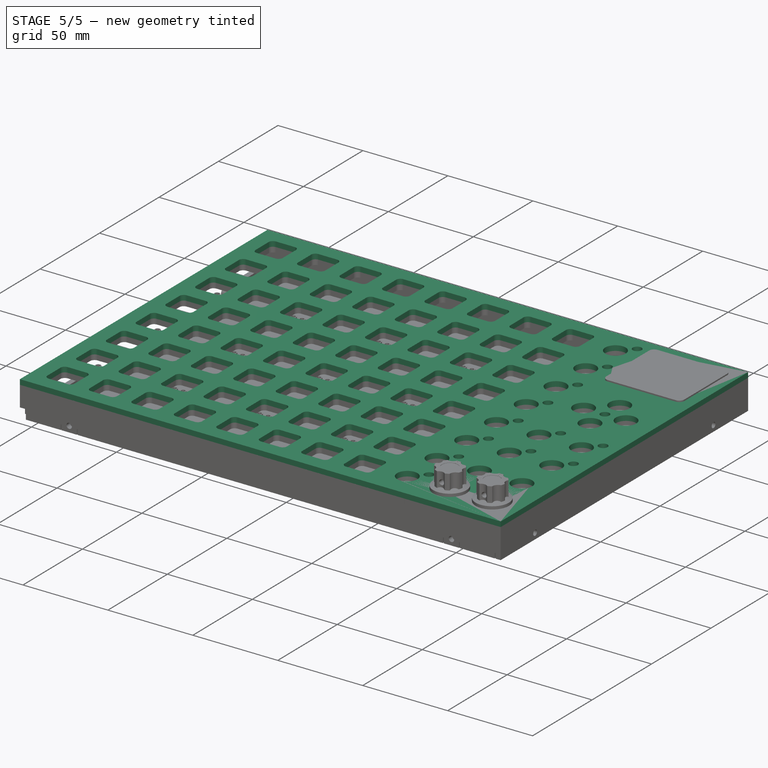
[diagram: stage 5 of 5 — iso view after this stage's code; geometry added in this stage tinted green]
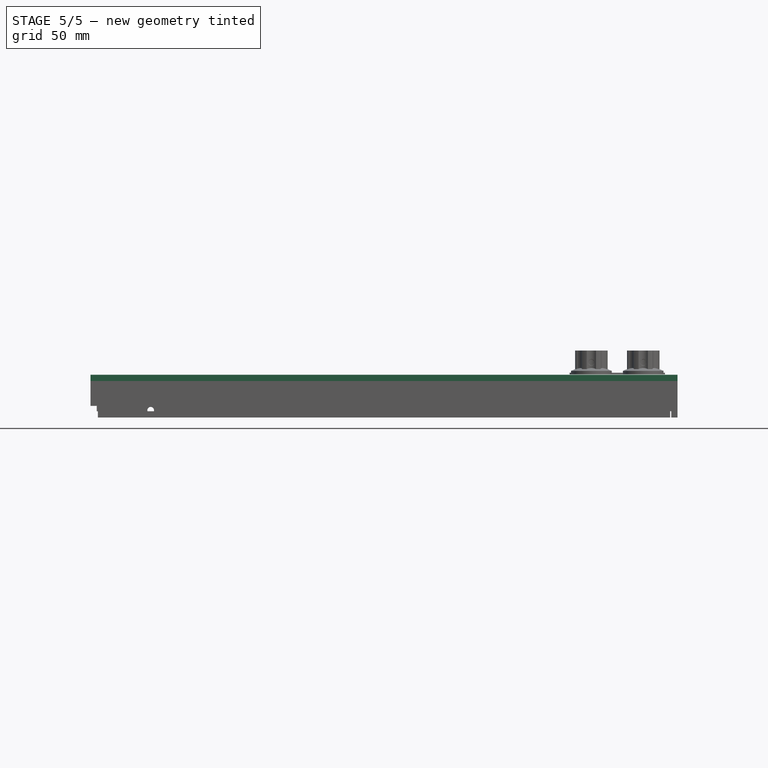
[diagram: stage 5 of 5 — front view after this stage's code; geometry added in this stage tinted green]
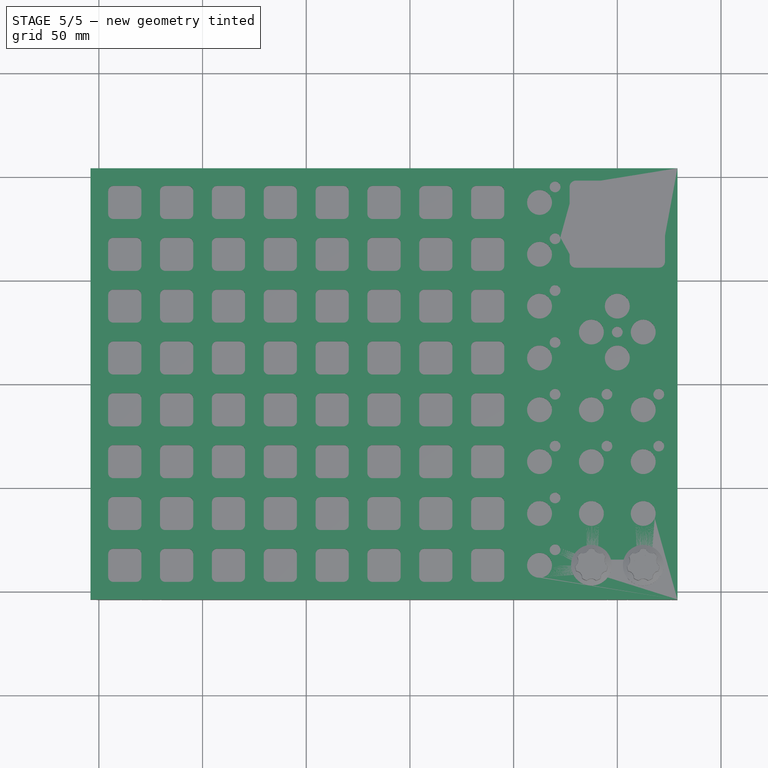
[diagram: stage 5 of 5 — top view after this stage's code; geometry added in this stage tinted green]
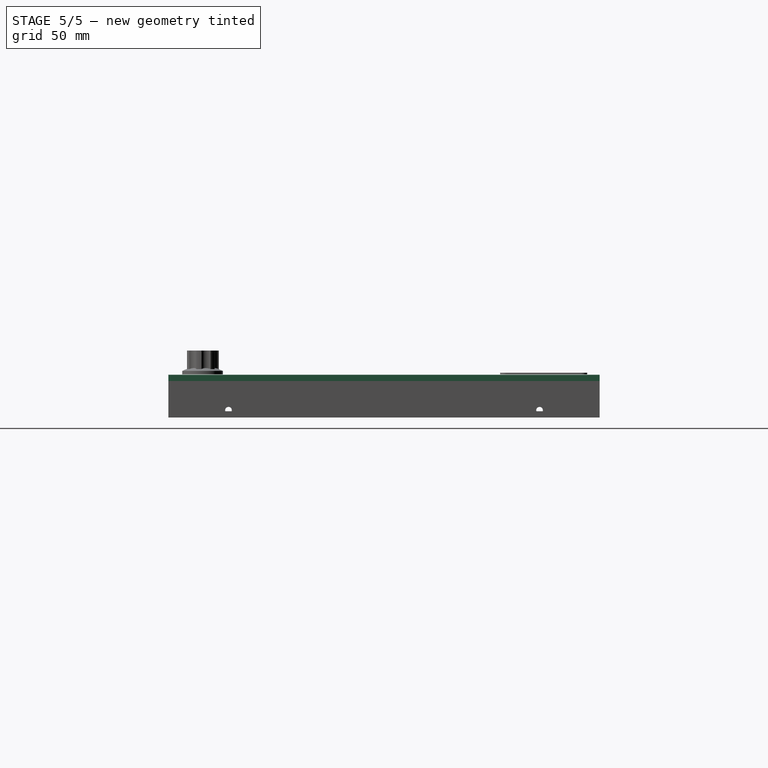
[diagram: stage 5 of 5 — right view after this stage's code; geometry added in this stage tinted green]
FEATURE [App::VRMLObject] midi_grid
  Placement = pos=(-65.5,37.5,0) rot=(0,0,1;0rad)
FEATURE [App::VRMLObject] pad
  Placement = pos=(100,-100,-2.46) rot=(0,0,1;0rad)
FEATURE [App::VRMLObject] pad001
  Placement = pos=(200,-100,-2.46) rot=(0,0,1;0rad)
FEATURE [App::VRMLObject] pad002
  Placement = pos=(100,-200,-2.46) rot=(0,0,1;0rad)
FEATURE [App::VRMLObject] pad003
  Placement = pos=(200,-200,-2.46) rot=(0,0,1;0rad)
FEATURE [App::VRMLObject] tact_black
  Placement = pos=(212.5,-12.5,0.8) rot=(0,0,1;0rad)
FEATURE [App::VRMLObject] tact_black001
  Placement = pos=(212.5,-37.5,0.8) rot=(0,0,1;0rad)
FEATURE [App::VRMLObject] tact_black002
  Placement = pos=(212.5,-62.5,0.8) rot=(0,0,1;0rad)
FEATURE [App::VRMLObject] tact_black003
  Placement = pos=(212.5,-112.5,0.8) rot=(0,0,1;0rad)
FEATURE [App::VRMLObject] tact_black004
  Placement = pos=(212.5,-162.5,0.8) rot=(0,0,1;0rad)
FEATURE [App::VRMLObject] tact_black005
  Placement = pos=(212.5,-137.5,0.8) rot=(0,0,1;0rad)
FEATURE [App::VRMLObject] tact_black006
  Placement = pos=(212.5,-87.5,0.8) rot=(0,0,1;0rad)
FEATURE [App::VRMLObject] tact_black007
  Placement = pos=(212.5,-187.5,0.8) rot=(0,0,1;0rad)
FEATURE [App::VRMLObject] tact_black008
  Placement = pos=(262.5,-112.5,0.8) rot=(0,0,1;0rad)
FEATURE [App::VRMLObject] tact_black009
  Placement = pos=(262.5,-137.5,0.8) rot=(0,0,1;0rad)
FEATURE [App::VRMLObject] tact_black010
  Placement = pos=(237.5,-112.5,0.8) rot=(0,0,1;0rad)
FEATURE [App::VRMLObject] tact_black011
  Placement = pos=(237.5,-137.5,0.8) rot=(0,0,1;0rad)
FEATURE [App::VRMLObject] tact_black012
  Placement = pos=(237.5,-162.5,0.8) rot=(0,0,1;0rad)
FEATURE [App::VRMLObject] tact_red
  Placement = pos=(262.5,-162.5,0.8) rot=(0,0,1;0rad)
FEATURE [App::VRMLObject] tact_black013
  Placement = pos=(250,-62.5,0.8) rot=(0,0,1;1.5708rad)
FEATURE [App::VRMLObject] tact_black014
  Placement = pos=(250,-87.5,0.8) rot=(0,0,1;1.5708rad)
FEATURE [App::VRMLObject] tact_black015
  Placement = pos=(262.5,-75,0.8) rot=(0,0,1;1.5708rad)
FEATURE [App::VRMLObject] tact_black016
  Placement = pos=(237.5,-75,0.8) rot=(0,0,1;1.5708rad)
FEATURE [App::VRMLObject] LED_D5
  Placement = pos=(220,-3.1,0.8) rot=(0,0,1;4.71239rad)
FEATURE [App::VRMLObject] LED_D006
  Placement = pos=(220,-28.1,0.8) rot=(0,0,1;4.71239rad)
FEATURE [App::VRMLObject] LED_D007
  Placement = pos=(220,-103.1,0.8) rot=(0,0,1;4.71239rad)
FEATURE [App::VRMLObject] LED_D008
  Placement = pos=(220,-53.1,0.8) rot=(0,0,1;4.71239rad)
FEATURE [App::VRMLObject] LED_D009
  Placement = pos=(220,-78.1,0.8) rot=(0,0,1;4.71239rad)
FEATURE [App::VRMLObject] LED_D010
  Placement = pos=(220,-153.1,0.8) rot=(0,0,1;4.71239rad)
FEATURE [App::VRMLObject] LED_D011
  Placement = pos=(220,-128.1,0.8) rot=(0,0,1;4.71239rad)
FEATURE [App::VRMLObject] LED_D012
  Placement = pos=(220,-178.1,0.8) rot=(0,0,1;4.71239rad)
FEATURE [App::VRMLObject] LED_D013
  Placement = pos=(245,-103.1,0.8) rot=(0,0,1;4.71239rad)
FEATURE [App::VRMLObject] LED_D014
  Placement = pos=(270,-103.1,0.8) rot=(0,0,1;4.71239rad)
FEATURE [App::VRMLObject] LED_D015
  Placement = pos=(245,-128.1,0.8) rot=(0,0,1;4.71239rad)
FEATURE [App::VRMLObject] LED_D016
  Placement = pos=(270,-128.1,0.8) rot=(0,0,1;4.71239rad)
FEATURE [App::VRMLObject] LED_D017
  Placement = pos=(250,-73.1,0.8) rot=(0,0,1;4.71239rad)
FEATURE [Part::Feature] Part__Feature  label="User Library-LCD5110R-1"
  Placement = pos=(250,-22.5,6.4) rot=(0,0,1;3.14159rad)
  shape: bbox 45 x 45 x 5.902 mm, 905 faces (baked)
FEATURE [Part::Feature] Part__Feature001  label="User Library-MicroUSB-B_Molex_105017-0001"
  Placement = pos=(263.5,-1.8,2.1) rot=(0,0.707107,0.707107;3.14159rad)
  shape: bbox 8.2 x 5.43 x 3.3 mm, 436 faces (baked)
FEATURE [Part::Feature] Part__Feature003  label="CUI_SJ1-3525N"
  Placement = pos=(251,1,3.3) rot=(0,0,1;1.5708rad)
  shape: bbox 12 x 14 x 8.8 mm, 64 faces (baked)
FEATURE [Part::Feature] Part__Feature004  label="CUI_SJ1-3525N001"
  Placement = pos=(238.5,1,3.3) rot=(0,0,1;1.5708rad)
  shape: bbox 12 x 14 x 8.8 mm, 64 faces (baked)
FEATURE [App::DocumentObjectGroup] Group  label="Electronics"
  Group = -> [midi_grid,pad,pad001,pad002,pad003,tact_black,tact_black001,tact_black002,tact_black003,tact_black004,tact_black005,tact_black006,tact_black007,tact_black008,tact_black009,tact_black010,tact_black011,tact_black012,tact_red,tact_black013,tact_black014,tact_black015,tact_black016,LED_D5,LED_D006,LED_D007,LED_D008,LED_D009,LED_D010,LED_D011,LED_D012,LED_D013,LED_D014,LED_D015,LED_D016,LED_D017,+4 more]
FEATURE [Sketcher::SketchObject] Sketch001
  sketch-geometry (12):
    g0: LineSegment StartX=0 StartY=25 StartZ=0 EndX=25 EndY=25 EndZ=0
    g1: LineSegment StartX=25 StartY=25 StartZ=0 EndX=25 EndY=0 EndZ=0
    g2: LineSegment StartX=25 StartY=0 StartZ=0 EndX=0 EndY=0 EndZ=0
    g3: LineSegment StartX=0 StartY=0 StartZ=0 EndX=0 EndY=25 EndZ=0
    g4: LineSegment StartX=4.5 StartY=18 StartZ=0 EndX=4.5 EndY=7 EndZ=0
    g5: LineSegment StartX=20.5 StartY=18 StartZ=0 EndX=20.5 EndY=7 EndZ=0
    g6: ArcOfCircle CenterX=7 CenterY=18 CenterZ=0 NormalX=0 NormalY=0 NormalZ=1 Radius=2.5 StartAngle=1.5708 EndAngle=3.14159
    g7: ArcOfCircle CenterX=18 CenterY=18 CenterZ=0 NormalX=0 NormalY=0 NormalZ=1 Radius=2.5 StartAngle=0 EndAngle=1.5708
    g8: ArcOfCircle CenterX=7 CenterY=7 CenterZ=0 NormalX=0 NormalY=0 NormalZ=1 Radius=2.5 StartAngle=3.14159 EndAngle=4.71239
    g9: ArcOfCircle CenterX=18 CenterY=7 CenterZ=0 NormalX=0 NormalY=0 NormalZ=1 Radius=2.5 StartAngle=4.71239 EndAngle=6.28319
    g10: LineSegment StartX=7 StartY=4.5 StartZ=0 EndX=18 EndY=4.5 EndZ=0
    g11: LineSegment StartX=18 StartY=20.5 StartZ=0 EndX=7 EndY=20.5 EndZ=0
  constraints (40):
    c: Coincident(g0,g1)
    c: Coincident(g1,g2)
    c: Coincident(g2,g3)
    c: Coincident(g3,g0)
    c: Horizontal(g0)
    c: Horizontal(g2)
    c: Vertical(g1)
    c: Vertical(g3)
    c: PointOnObject(g0,g-2)
    c: Vertical(g4)
    c: DistanceY(g4,g4) = 11
    c: Vertical(g5)
    c: Equal(g5,g4)
    c: DistanceX(g0,g4) = 4.5
    c: DistanceX(g4,g5) = 16
    c: Coincident(g7,g5)
    c: Coincident(g8,g4)
    c: Coincident(g9,g5)
    c: Horizontal(g10)
    c: Horizontal(g11)
    c: Coincident(g11,g6)
    c: Coincident(g7,g11)
    c: Angle(g7) = 1.5708
    c: Angle(g6) = 1.5708
    c: Radius(g7) = 2.5
    c: Radius(g6) = 2.5
    c: Coincident(g6,g4)
    c: Equal(g11,g10)
    c: DistanceX(g11,g11) = 11
    c: Coincident(g8,g10)
    c: Coincident(g10,g9)
    c: Angle(g8) = 1.5708
    c: Radius(g8) = 2.5
    c: Radius(g9) = 2.5
    c: Angle(g9) = 1.5708
    c: DistanceY(g7,g0) = 4.5
    c: DistanceY(g1,g1) = 25
    c: DistanceX(g0,g0) = 25
    c: DistanceY(g5,g4) = 0
    c: DistanceY(g2,g-1) = 0
FEATURE [PartDesign::Pad] Pad  label="Pad003"
  Length = 3
  Length2 = 100
  Sketch = -> Sketch001
  Type = 0
FEATURE [Part::FeaturePython] Array  # Draft array (typed FeaturePython)
  Angle = 360
  ArrayType = 0
  Axis = (0,0,1)
  Base = -> Pad
  Center = (0,0,0)
  Fuse = false
  IntervalAxis = (0,0,0)
  IntervalX = (25,0,0)
  IntervalY = (0,25,0)
  IntervalZ = (0,0,0)
  NumberPolar = 1
  NumberX = 8
  NumberY = 8
  NumberZ = 1
FEATURE [Part::FeaturePython] Clone  label="Clone of Array"  # Draft clone (typed FeaturePython)
  Objects = -> [Array]
  Scale = (1,1,1)
FEATURE [Part::MultiFuse] Fusion
  Shapes = -> [Array,Clone]
FEATURE [Part::Box] Box  label="Cube"
  Height = 3
  Length = 25
  Placement = pos=(225,25,0) rot=(0,0,1;0rad)
  Width = 25
FEATURE [Part::Cylinder] Cylinder
  Angle = 360
  Height = 10
  Placement = pos=(237.5,37.5,0) rot=(0,0,1;0rad)
  Radius = 6
FEATURE [Part::Cut] Cut
  Base = -> Box
  Tool = -> Cylinder
FEATURE [Part::FeaturePython] Array003  # Draft array (typed FeaturePython)
  Angle = 360
  ArrayType = 0
  Axis = (0,0,1)
  Base = -> Cut
  Center = (0,0,0)
  Fuse = false
  IntervalAxis = (0,0,0)
  IntervalX = (25,0,0)
  IntervalY = (0,1,0)
  IntervalZ = (0,0,0)
  NumberPolar = 1
  NumberX = 2
  NumberY = 1
  NumberZ = 1
FEATURE [Part::FeaturePython] Clone003  label="Clone of Array003"  # Draft clone (typed FeaturePython)
  Objects = -> [Array003]
  Scale = (1,1,1)
FEATURE [Part::MultiFuse] Fusion004
  Shapes = -> [Array003,Clone003]
FEATURE [Part::Box] Box001  label="Cube001"
  Height = 3
  Length = 50
  Placement = pos=(225,100,0) rot=(0,0,1;0rad)
  Width = 50
FEATURE [Part::Cylinder] Cylinder001
  Angle = 360
  Height = 10
  Placement = pos=(250,125,0) rot=(0,0,1;0rad)
  Radius = 2.6
FEATURE [Part::Cut] Cut001
  Base = -> Box001
  Tool = -> Cylinder001
FEATURE [Part::Cylinder] Cylinder002
  Angle = 360
  Height = 10
  Placement = pos=(250,112.5,0) rot=(0,0,1;0rad)
  Radius = 6
FEATURE [Part::FeaturePython] Array004  # Draft array (typed FeaturePython)
  Angle = 360
  ArrayType = 1
  Axis = (0,0,1)
  Base = -> Cylinder002
  Center = (250,125,0)
  Fuse = false
  IntervalAxis = (0,0,0)
  IntervalX = (1,0,0)
  IntervalY = (0,1,0)
  IntervalZ = (0,0,0)
  NumberPolar = 4
  NumberX = 1
  NumberY = 1
  NumberZ = 1
FEATURE [Part::Cut] Cut002
  Base = -> Cut001
  Tool = -> Array004
FEATURE [Part::Box] Box002  label="Cube002"
  Height = 3
  Length = 25
  Placement = pos=(225,0,0) rot=(0,0,1;0rad)
  Width = 25
FEATURE [Part::Cylinder] Cylinder003
  Angle = 360
  Height = 10
  Placement = pos=(237.5,12.5,0) rot=(0,0,1;0rad)
  Radius = 4
FEATURE [Part::Cut] Cut003
  Base = -> Box002
  Tool = -> Cylinder003
FEATURE [Part::FeaturePython] Array005  # Draft array (typed FeaturePython)
  Angle = 360
  ArrayType = 0
  Axis = (0,0,1)
  Base = -> Cut003
  Center = (0,0,0)
  Fuse = false
  IntervalAxis = (0,0,0)
  IntervalX = (25,0,0)
  IntervalY = (0,1,0)
  IntervalZ = (0,0,0)
  NumberPolar = 1
  NumberX = 2
  NumberY = 1
  NumberZ = 1
FEATURE [Part::FeaturePython] Clone004  label="Clone of Array005"  # Draft clone (typed FeaturePython)
  Objects = -> [Array005]
  Scale = (1,1,1)
FEATURE [Part::MultiFuse] Fusion008
  Shapes = -> [Array005,Clone004]
FEATURE [Part::Box] Box003  label="Cube003"
  Height = 3
  Length = 50
  Placement = pos=(225,150,0) rot=(0,0,1;0rad)
  Width = 50
FEATURE [Part::Box] Box004  label="Cube004"
  Height = 10
  Length = 41
  Placement = pos=(229.5,158,0) rot=(0,0,1;0rad)
  Width = 38
FEATURE [Part::Cut] Cut004
  Base = -> Box003
  Tool = -> Box004
FEATURE [Part::Box] Box005  label="Cube005"
  Height = 3
  Length = 4
  Placement = pos=(-4,0,0) rot=(0,0,1;0rad)
  Width = 200
FEATURE [Part::Box] Box006  label="Cube006"
  Height = 3
  Length = 4
  Placement = pos=(275,0,0) rot=(0,0,1;0rad)
  Width = 200
FEATURE [Part::Box] Box007  label="Cube007"
  Height = 3
  Length = 283
  Placement = pos=(-4,-4,0) rot=(0,0,1;0rad)
  Width = 4
FEATURE [Part::Box] Box008  label="Cube008"
  Height = 3
  Length = 283
  Placement = pos=(-4,200,0) rot=(0,0,1;0rad)
  Width = 4
FEATURE [Part::Box] Box009  label="Cube009"
  Height = 3
  Length = 25
  Placement = pos=(200,0,0) rot=(0,0,1;0rad)
  Width = 25
FEATURE [Part::Cylinder] Cylinder004
  Angle = 360
  Height = 10
  Placement = pos=(212.5,12.5,-5) rot=(0,0,1;0rad)
  Radius = 6
FEATURE [Part::Cylinder] Cylinder005
  Angle = 360
  Height = 10
  Placement = pos=(220,20,-5) rot=(0,0,1;0rad)
  Radius = 2.6
FEATURE [Part::Cut] Cut005
  Base = -> Box009
  Tool = -> Cylinder005
FEATURE [Part::Cut] Cut006
  Base = -> Cut005
  Tool = -> Cylinder004
FEATURE [Part::FeaturePython] Clone005  label="Clone of Cut006"  # Draft clone (typed FeaturePython)
  Objects = -> [Cut006]
  Placement = pos=(25,50,0) rot=(0,0,1;0rad)
  Scale = (1,1,1)
FEATURE [Part::FeaturePython] Array006  # Draft array (typed FeaturePython)
  Angle = 360
  ArrayType = 0
  Axis = (0,0,1)
  Base = -> Cut006
  Center = (0,0,0)
  Fuse = false
  IntervalAxis = (0,0,0)
  IntervalX = (1,0,0)
  IntervalY = (0,25,0)
  IntervalZ = (0,0,0)
  NumberPolar = 1
  NumberX = 1
  NumberY = 8
  NumberZ = 1
FEATURE [Part::FeaturePython] Clone006  label="Clone of Array006"  # Draft clone (typed FeaturePython)
  Objects = -> [Array006]
  Scale = (1,1,1)
FEATURE [Part::FeaturePython] Array007  # Draft array (typed FeaturePython)
  Angle = 360
  ArrayType = 0
  Axis = (0,0,1)
  Base = -> Clone005
  Center = (0,0,0)
  Fuse = false
  IntervalAxis = (0,0,0)
  IntervalX = (25,0,0)
  IntervalY = (0,25,0)
  IntervalZ = (0,0,0)
  NumberPolar = 1
  NumberX = 2
  NumberY = 2
  NumberZ = 1
FEATURE [Part::FeaturePython] Clone007  label="Clone of Array007"  # Draft clone (typed FeaturePython)
  Objects = -> [Array007]
  Scale = (1,1,1)
FEATURE [Part::MultiFuse] Fusion009
  Shapes = -> [Array006,Clone006,Array007,Clone007]
FEATURE [Part::MultiFuse] Fusion010
  Shapes = -> [Box008,Box005,Box006,Box007,Cut004,Cut002,Fusion004,Fusion,Fusion008,Fusion009]
FEATURE [Part::FeaturePython] refine  label="TopPanel"  # WARN: FeaturePython — macro-defined, semantics opaque (R4)
  Base = -> Fusion010
  Placement = pos=(0,-200,8.8) rot=(0,0,1;0rad)
FEATURE [Part::Fillet] Fillet001  label="ConnectorPanel"
  Base = -> Fusion026
  Edges = 4 edges: [Edge1 r=2,Edge4 r=2,Edge5 r=7,Edge34 r=2]
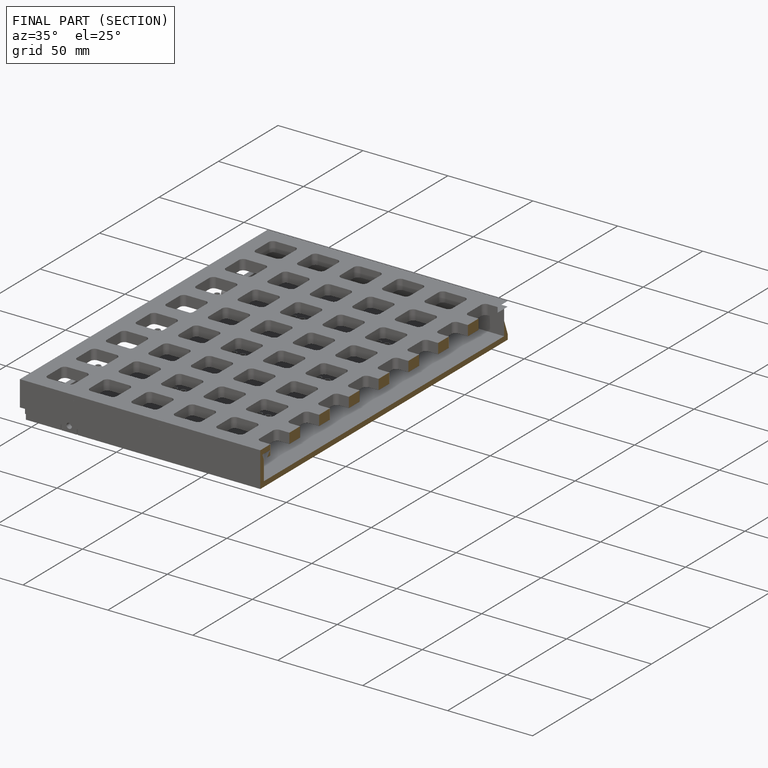
[diagram: finished part — half-section view (interior)]
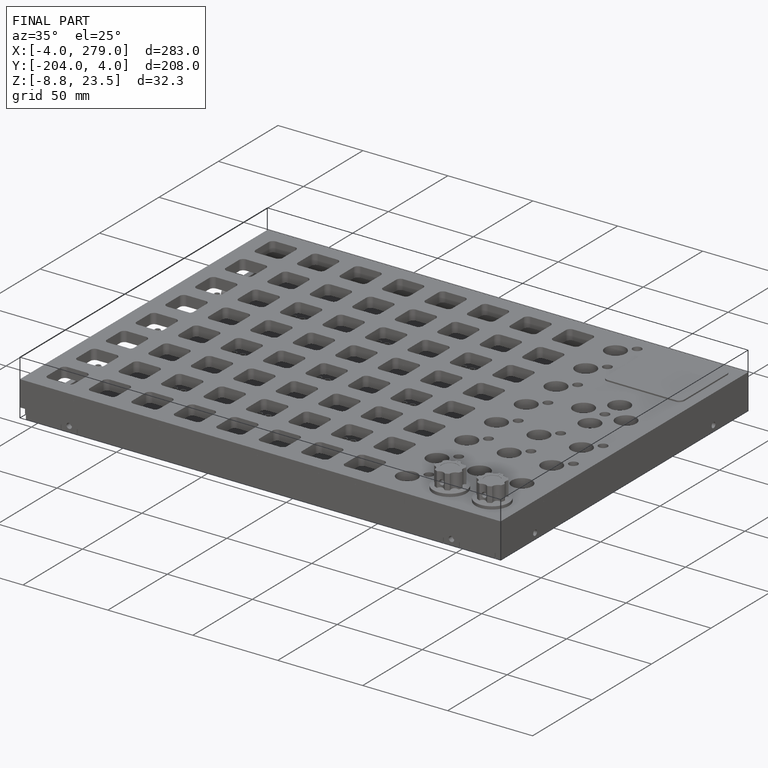
[diagram: finished part — iso view with bounding-box wireframe]
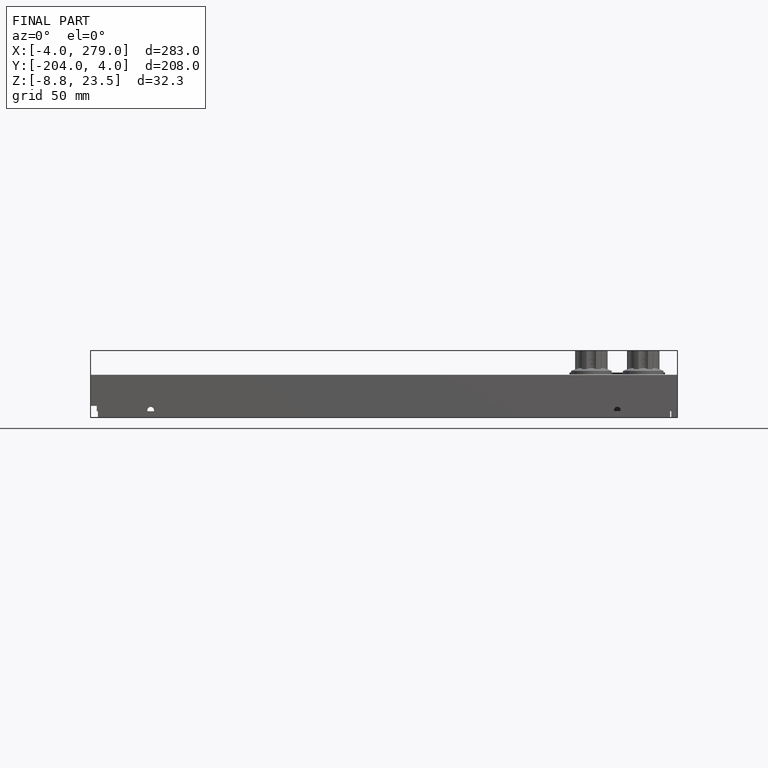
[diagram: finished part — front view with bounding-box wireframe]
